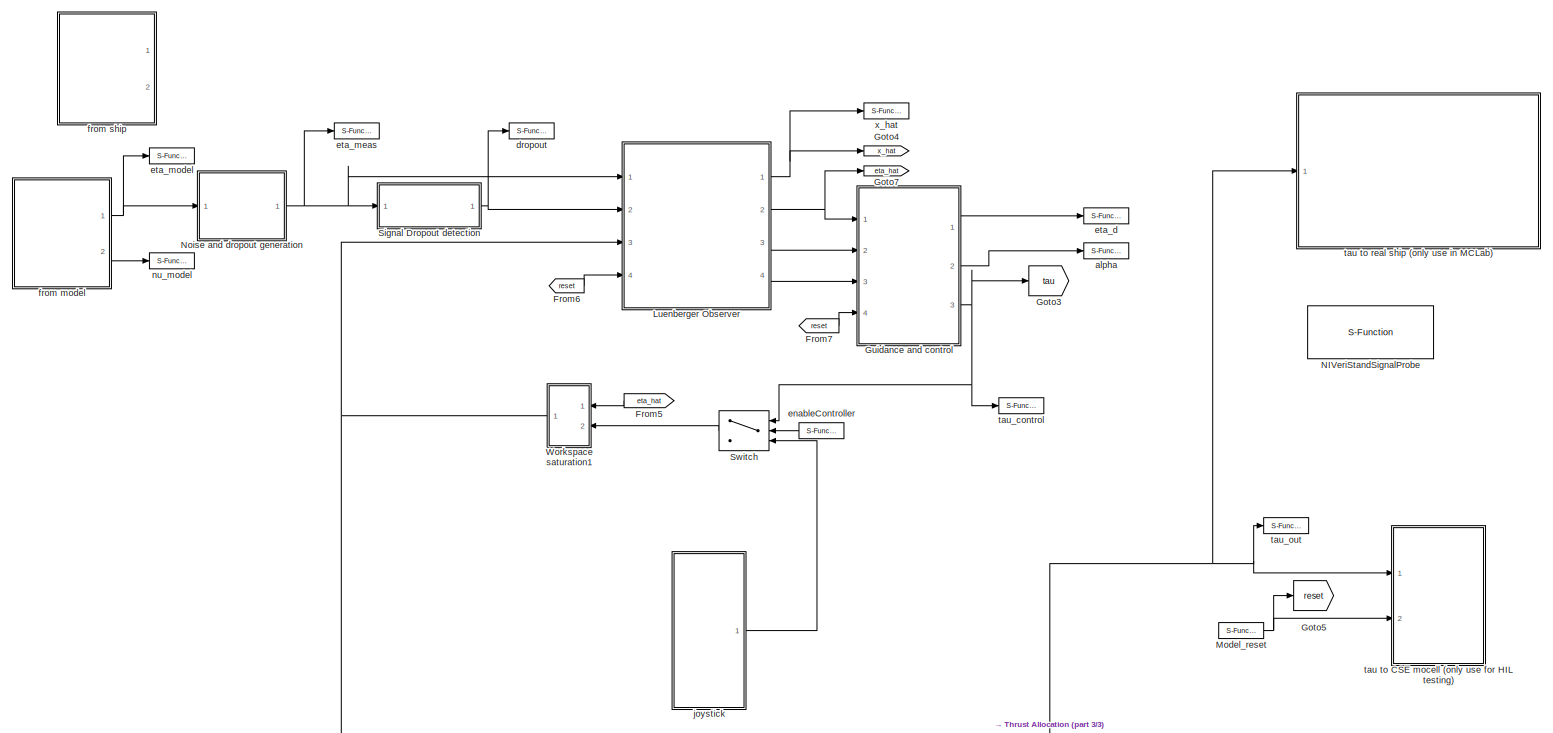
[diagram: root canvas - part 1/3, full width, middle band]
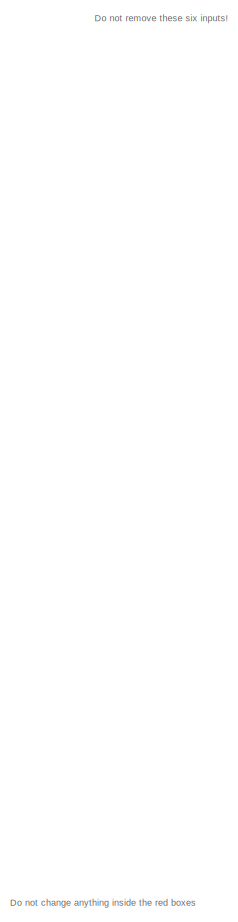
[diagram: root canvas - part 2/3, left side, full height]
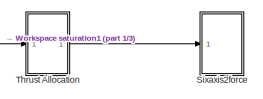
[diagram: root canvas - part 3/3, bottom right region]
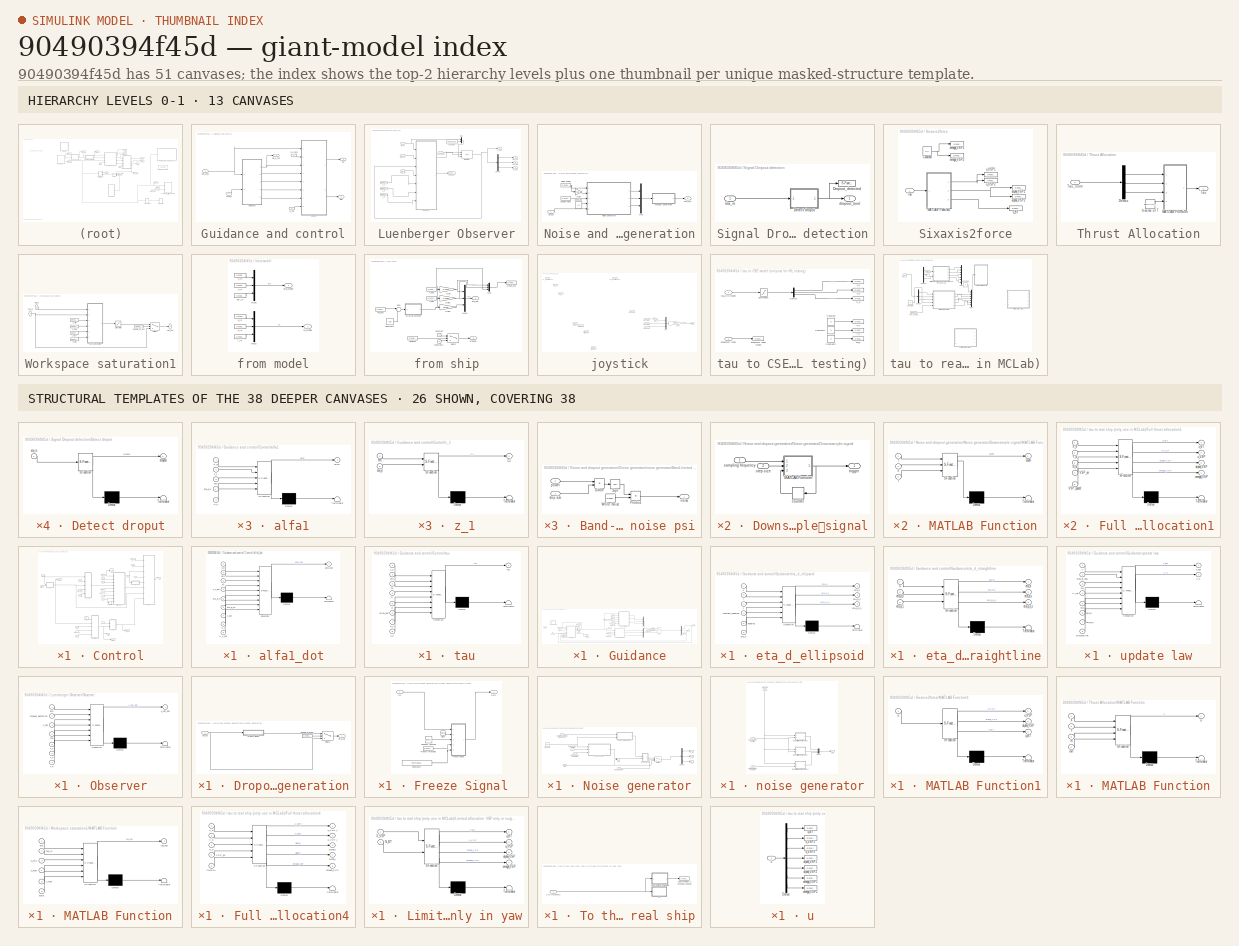
[diagram: thumbnail index - top-2 hierarchy levels (13 canvases) + 26 structural-template representatives of the remaining 38 canvases]
MODEL slx_90490394f45d
KIND model
CONFIG AbsTol = auto
CONFIG FixedStep = 0.01
CONFIG MaxStep = auto
CONFIG MinStep = auto
CONFIG RelTol = 1e-3
CONFIG SampleTimeConstraint = Unconstrained
CONFIG Solver = ode4
CONFIG SolverMode = Auto
CONFIG SolverName = ode4
CONFIG StartTime = 0.0
CONFIG StopTime = inf
BLOCK [From] From5
  GotoTag = eta_hat
BLOCK [From] From6
  GotoTag = reset
BLOCK [From] From7
  GotoTag = reset
BLOCK [Goto] Goto3
  GotoTag = tau
BLOCK [Goto] Goto4
  GotoTag = x_hat
BLOCK [Goto] Goto5
  GotoTag = reset
BLOCK [Goto] Goto7
  GotoTag = eta_hat
BLOCK [SubSystem] Guidance and control
  Ports = [4, 3]
  RequestExecContextInheritance = off
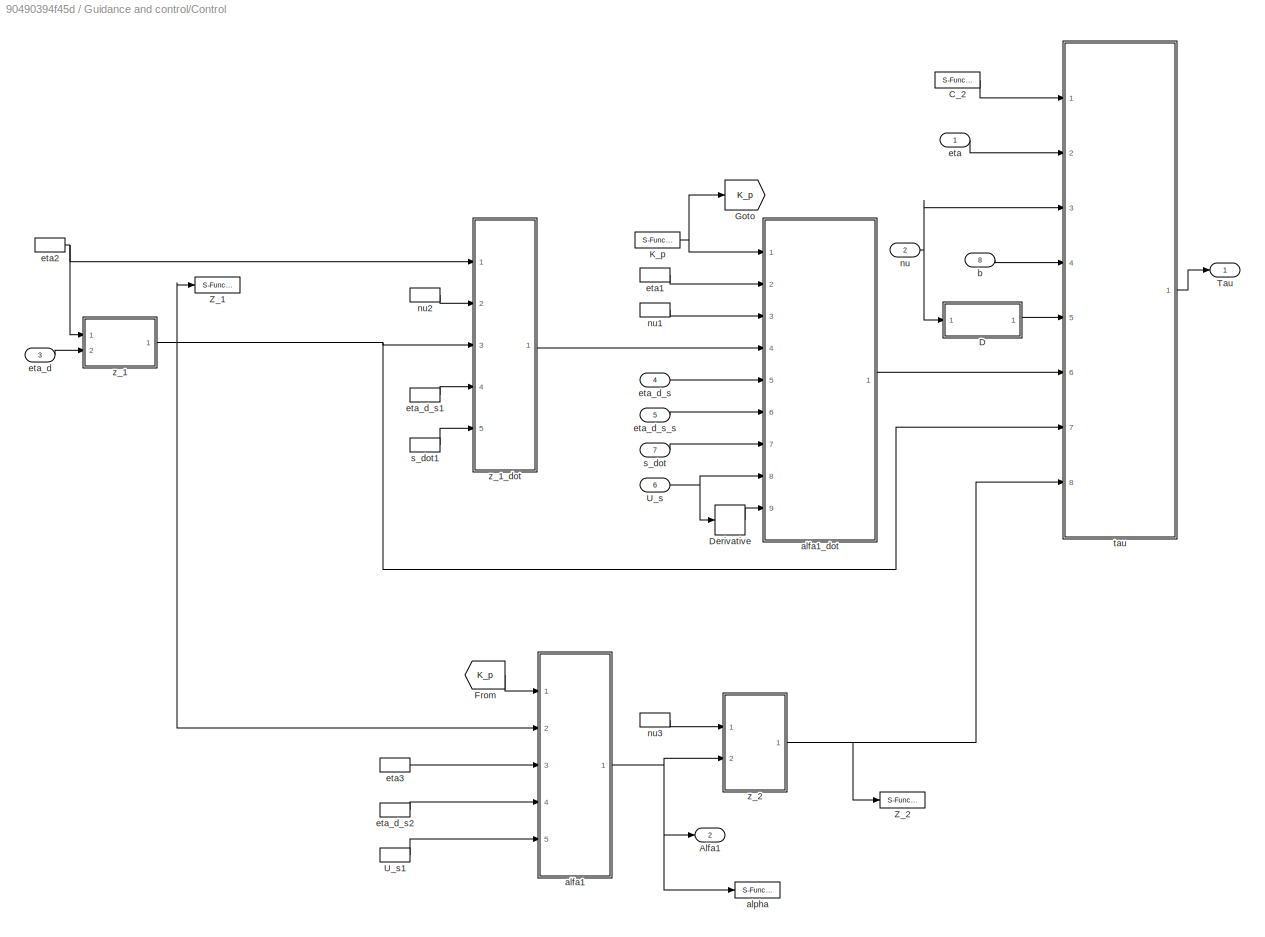
BLOCK [SubSystem] Guidance and control/Control
  Ports = [8, 2]
  RequestExecContextInheritance = off
BLOCK [Outport] Guidance and control/Control/Alfa1
  IconDisplay = Port number
  Port = 2
BLOCK [S-Function] Guidance and control/Control/C_2
  CopyFcn = NIVeriStand_MDL_functions('', 'IO_copy');
  DeleteFcn = NIVeriStand_MDL_functions('', 'IO_delete');
  FunctionName = NIVeriStandIO
  MoveFcn = set_param(gcb, 'Mask', 'on');
  Parameters = width dtype portnum stime stype btype
  Ports = [0, 1]
  Priority = 2
BLOCK [SubSystem] Guidance and control/Control/D
  ErrorFcn = Stateflow.Translate.translate
  PermitHierarchicalResolution = ExplicitOnly
  Ports = [1, 1]
  RequestExecContextInheritance = off
  SFBlockType = MATLAB Function
  TreatAsAtomicUnit = on
BLOCK [Demux] Guidance and control/Control/D/ Demux 
  Outputs = 1
  Ports = [1, 1]
BLOCK [S-Function] Guidance and control/Control/D/ SFunction 
  EnableBusSupport = on
  FunctionName = sf_sfun
  PortCounts = [1 2]
  Ports = [1, 2]
  Tag = Stateflow S-Function ctrl_student_HIL 22
BLOCK [Terminator] Guidance and control/Control/D/ Terminator 
BLOCK [Outport] Guidance and control/Control/D/D
  IconDisplay = Port number
BLOCK [Inport] Guidance and control/Control/D/nu
  IconDisplay = Port number
BLOCK [Derivative] Guidance and control/Control/Derivative
BLOCK [From] Guidance and control/Control/From
  GotoTag = K_p
BLOCK [Goto] Guidance and control/Control/Goto
  GotoTag = K_p
BLOCK [S-Function] Guidance and control/Control/K_p
  CopyFcn = NIVeriStand_MDL_functions('', 'IO_copy');
  DeleteFcn = NIVeriStand_MDL_functions('', 'IO_delete');
  FunctionName = NIVeriStandIO
  MoveFcn = set_param(gcb, 'Mask', 'on');
  Parameters = width dtype portnum stime stype btype
  Ports = [0, 1]
  Priority = 1
BLOCK [Outport] Guidance and control/Control/Tau
  IconDisplay = Port number
BLOCK [Inport] Guidance and control/Control/U_s
  IconDisplay = Port number
  Port = 6
BLOCK [InportShadow] Guidance and control/Control/U_s1
  IconDisplay = Port number
  Port = 6
BLOCK [S-Function] Guidance and control/Control/Z_1
  CopyFcn = NIVeriStand_MDL_functions('', 'IO_copy');
  DeleteFcn = NIVeriStand_MDL_functions('', 'IO_delete');
  FunctionName = NIVeriStandIO
  MoveFcn = set_param(gcb, 'Mask', 'on');
  Parameters = width dtype portnum stime stype btype
  Ports = [1]
  Priority = 2
BLOCK [S-Function] Guidance and control/Control/Z_2
  CopyFcn = NIVeriStand_MDL_functions('', 'IO_copy');
  DeleteFcn = NIVeriStand_MDL_functions('', 'IO_delete');
  FunctionName = NIVeriStandIO
  MoveFcn = set_param(gcb, 'Mask', 'on');
  Parameters = width dtype portnum stime stype btype
  Ports = [1]
  Priority = 3
BLOCK [SubSystem] Guidance and control/Control/alfa1
  ErrorFcn = Stateflow.Translate.translate
  PermitHierarchicalResolution = ExplicitOnly
  Ports = [5, 1]
  RequestExecContextInheritance = off
  SFBlockType = MATLAB Function
  TreatAsAtomicUnit = on
BLOCK [Demux] Guidance and control/Control/alfa1/ Demux 
  Outputs = 1
  Ports = [1, 1]
BLOCK [S-Function] Guidance and control/Control/alfa1/ SFunction 
  EnableBusSupport = on
  FunctionName = sf_sfun
  PortCounts = [5 2]
  Ports = [5, 2]
  Tag = Stateflow S-Function ctrl_student_HIL 19
BLOCK [Terminator] Guidance and control/Control/alfa1/ Terminator 
BLOCK [Inport] Guidance and control/Control/alfa1/K_p
  IconDisplay = Port number
BLOCK [Inport] Guidance and control/Control/alfa1/U_s
  IconDisplay = Port number
  Port = 5
BLOCK [Outport] Guidance and control/Control/alfa1/alfa1
  IconDisplay = Port number
BLOCK [Inport] Guidance and control/Control/alfa1/eta
  IconDisplay = Port number
  Port = 3
BLOCK [Inport] Guidance and control/Control/alfa1/eta_d_s
  IconDisplay = Port number
  Port = 4
BLOCK [Inport] Guidance and control/Control/alfa1/z_1
  IconDisplay = Port number
  Port = 2
BLOCK [SubSystem] Guidance and control/Control/alfa1_dot
  ErrorFcn = Stateflow.Translate.translate
  PermitHierarchicalResolution = ExplicitOnly
  Ports = [9, 1]
  RequestExecContextInheritance = off
  SFBlockType = MATLAB Function
  TreatAsAtomicUnit = on
BLOCK [Demux] Guidance and control/Control/alfa1_dot/ Demux 
  Outputs = 1
  Ports = [1, 1]
BLOCK [S-Function] Guidance and control/Control/alfa1_dot/ SFunction 
  EnableBusSupport = on
  FunctionName = sf_sfun
  PortCounts = [9 2]
  Ports = [9, 2]
  Tag = Stateflow S-Function ctrl_student_HIL 20
BLOCK [Terminator] Guidance and control/Control/alfa1_dot/ Terminator 
BLOCK [Inport] Guidance and control/Control/alfa1_dot/K_p
  IconDisplay = Port number
BLOCK [Inport] Guidance and control/Control/alfa1_dot/U_s
  IconDisplay = Port number
  Port = 8
BLOCK [Inport] Guidance and control/Control/alfa1_dot/U_s_dot
  IconDisplay = Port number
  Port = 9
BLOCK [Outport] Guidance and control/Control/alfa1_dot/alfa1_dot
  IconDisplay = Port number
BLOCK [Inport] Guidance and control/Control/alfa1_dot/eta
  IconDisplay = Port number
  Port = 2
BLOCK [Inport] Guidance and control/Control/alfa1_dot/eta_d_s
  IconDisplay = Port number
  Port = 5
BLOCK [Inport] Guidance and control/Control/alfa1_dot/eta_d_s2
  IconDisplay = Port number
  Port = 6
BLOCK [Inport] Guidance and control/Control/alfa1_dot/nu
  IconDisplay = Port number
  Port = 3
BLOCK [Inport] Guidance and control/Control/alfa1_dot/s_dot
  IconDisplay = Port number
  Port = 7
BLOCK [Inport] Guidance and control/Control/alfa1_dot/z_1_dot
  IconDisplay = Port number
  Port = 4
BLOCK [S-Function] Guidance and control/Control/alpha
  CopyFcn = NIVeriStand_MDL_functions('', 'IO_copy');
  DeleteFcn = NIVeriStand_MDL_functions('', 'IO_delete');
  FunctionName = NIVeriStandIO
  MoveFcn = set_param(gcb, 'Mask', 'on');
  Parameters = width dtype portnum stime stype btype
  Ports = [1]
  Priority = 1
BLOCK [Inport] Guidance and control/Control/b
  IconDisplay = Port number
  Port = 8
BLOCK [Inport] Guidance and control/Control/eta
  IconDisplay = Port number
BLOCK [InportShadow] Guidance and control/Control/eta1
  IconDisplay = Port number
BLOCK [InportShadow] Guidance and control/Control/eta2
  IconDisplay = Port number
BLOCK [InportShadow] Guidance and control/Control/eta3
  IconDisplay = Port number
BLOCK [Inport] Guidance and control/Control/eta_d
  IconDisplay = Port number
  Port = 3
BLOCK [Inport] Guidance and control/Control/eta_d_s
  IconDisplay = Port number
  Port = 4
BLOCK [InportShadow] Guidance and control/Control/eta_d_s1
  IconDisplay = Port number
  Port = 4
BLOCK [InportShadow] Guidance and control/Control/eta_d_s2
  IconDisplay = Port number
  Port = 4
BLOCK [Inport] Guidance and control/Control/eta_d_s_s 
  IconDisplay = Port number
  Port = 5
BLOCK [Inport] Guidance and control/Control/nu
  IconDisplay = Port number
  Port = 2
BLOCK [InportShadow] Guidance and control/Control/nu1
  IconDisplay = Port number
  Port = 2
BLOCK [InportShadow] Guidance and control/Control/nu2
  IconDisplay = Port number
  Port = 2
BLOCK [InportShadow] Guidance and control/Control/nu3
  IconDisplay = Port number
  Port = 2
BLOCK [Inport] Guidance and control/Control/s_dot
  IconDisplay = Port number
  Port = 7
BLOCK [InportShadow] Guidance and control/Control/s_dot1
  IconDisplay = Port number
  Port = 7
BLOCK [SubSystem] Guidance and control/Control/tau
  ErrorFcn = Stateflow.Translate.translate
  PermitHierarchicalResolution = ExplicitOnly
  Ports = [8, 1]
  RequestExecContextInheritance = off
  SFBlockType = MATLAB Function
  TreatAsAtomicUnit = on
BLOCK [Demux] Guidance and control/Control/tau/ Demux 
  Outputs = 1
  Ports = [1, 1]
BLOCK [S-Function] Guidance and control/Control/tau/ SFunction 
  EnableBusSupport = on
  FunctionName = sf_sfun
  PortCounts = [8 2]
  Ports = [8, 2]
  Tag = Stateflow S-Function ctrl_student_HIL 21
BLOCK [Terminator] Guidance and control/Control/tau/ Terminator 
BLOCK [Inport] Guidance and control/Control/tau/D
  IconDisplay = Port number
  Port = 5
BLOCK [Inport] Guidance and control/Control/tau/alfa1_dot
  IconDisplay = Port number
  Port = 6
BLOCK [Inport] Guidance and control/Control/tau/b
  IconDisplay = Port number
  Port = 4
BLOCK [Inport] Guidance and control/Control/tau/c_2
  IconDisplay = Port number
BLOCK [Inport] Guidance and control/Control/tau/eta
  IconDisplay = Port number
  Port = 2
BLOCK [Inport] Guidance and control/Control/tau/nu
  IconDisplay = Port number
  Port = 3
BLOCK [Outport] Guidance and control/Control/tau/tau
  IconDisplay = Port number
BLOCK [Inport] Guidance and control/Control/tau/z_1
  IconDisplay = Port number
  Port = 7
BLOCK [Inport] Guidance and control/Control/tau/z_2
  IconDisplay = Port number
  Port = 8
BLOCK [SubSystem] Guidance and control/Control/z_1
  ErrorFcn = Stateflow.Translate.translate
  PermitHierarchicalResolution = ExplicitOnly
  Ports = [2, 1]
  RequestExecContextInheritance = off
  SFBlockType = MATLAB Function
  TreatAsAtomicUnit = on
BLOCK [Demux] Guidance and control/Control/z_1/ Demux 
  Outputs = 1
  Ports = [1, 1]
BLOCK [S-Function] Guidance and control/Control/z_1/ SFunction 
  EnableBusSupport = on
  FunctionName = sf_sfun
  PortCounts = [2 2]
  Ports = [2, 2]
  Tag = Stateflow S-Function ctrl_student_HIL 2
BLOCK [Terminator] Guidance and control/Control/z_1/ Terminator 
BLOCK [Inport] Guidance and control/Control/z_1/eta
  IconDisplay = Port number
BLOCK [Inport] Guidance and control/Control/z_1/eta_d
  IconDisplay = Port number
  Port = 2
BLOCK [Outport] Guidance and control/Control/z_1/z_1
  IconDisplay = Port number
BLOCK [SubSystem] Guidance and control/Control/z_1_dot
  ErrorFcn = Stateflow.Translate.translate
  PermitHierarchicalResolution = ExplicitOnly
  Ports = [5, 1]
  RequestExecContextInheritance = off
  SFBlockType = MATLAB Function
  TreatAsAtomicUnit = on
BLOCK [Demux] Guidance and control/Control/z_1_dot/ Demux 
  Outputs = 1
  Ports = [1, 1]
BLOCK [S-Function] Guidance and control/Control/z_1_dot/ SFunction 
  EnableBusSupport = on
  FunctionName = sf_sfun
  PortCounts = [5 2]
  Ports = [5, 2]
  Tag = Stateflow S-Function ctrl_student_HIL 17
BLOCK [Terminator] Guidance and control/Control/z_1_dot/ Terminator 
BLOCK [Inport] Guidance and control/Control/z_1_dot/eta
  IconDisplay = Port number
BLOCK [Inport] Guidance and control/Control/z_1_dot/eta_d_s
  IconDisplay = Port number
  Port = 4
BLOCK [Inport] Guidance and control/Control/z_1_dot/nu
  IconDisplay = Port number
  Port = 2
BLOCK [Inport] Guidance and control/Control/z_1_dot/s_dot
  IconDisplay = Port number
  Port = 5
BLOCK [Inport] Guidance and control/Control/z_1_dot/z_1
  IconDisplay = Port number
  Port = 3
BLOCK [Outport] Guidance and control/Control/z_1_dot/z_1_dot
  IconDisplay = Port number
BLOCK [SubSystem] Guidance and control/Control/z_2
  ErrorFcn = Stateflow.Translate.translate
  PermitHierarchicalResolution = ExplicitOnly
  Ports = [2, 1]
  RequestExecContextInheritance = off
  SFBlockType = MATLAB Function
  TreatAsAtomicUnit = on
BLOCK [Demux] Guidance and control/Control/z_2/ Demux 
  Outputs = 1
  Ports = [1, 1]
BLOCK [S-Function] Guidance and control/Control/z_2/ SFunction 
  EnableBusSupport = on
  FunctionName = sf_sfun
  PortCounts = [2 2]
  Ports = [2, 2]
  Tag = Stateflow S-Function ctrl_student_HIL 18
BLOCK [Terminator] Guidance and control/Control/z_2/ Terminator 
BLOCK [Inport] Guidance and control/Control/z_2/alfa1
  IconDisplay = Port number
  Port = 2
BLOCK [Inport] Guidance and control/Control/z_2/nu
  IconDisplay = Port number
BLOCK [Outport] Guidance and control/Control/z_2/z_2
  IconDisplay = Port number
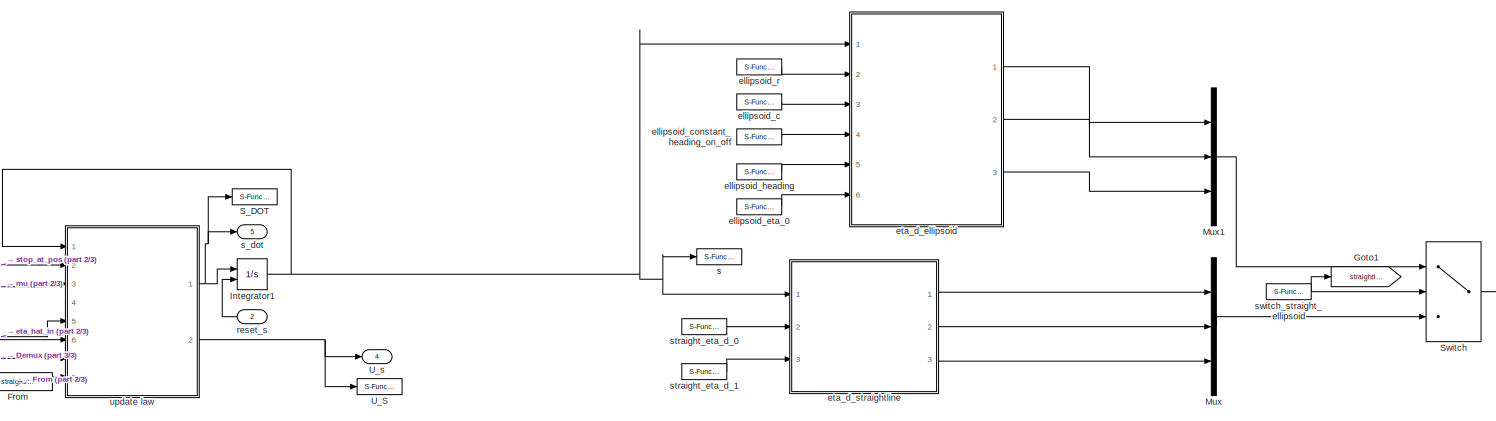
[diagram: Guidance and control/Guidance - part 1/3, center side, full height]
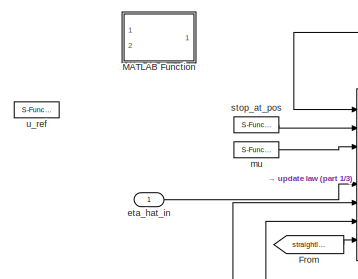
[diagram: Guidance and control/Guidance - part 2/3, middle left region]
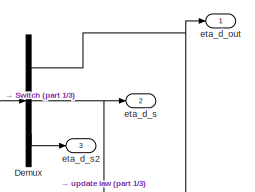
[diagram: Guidance and control/Guidance - part 3/3, middle right region]
BLOCK [SubSystem] Guidance and control/Guidance
  Ports = [2, 5]
  RequestExecContextInheritance = off
BLOCK [Demux] Guidance and control/Guidance/Demux
  DisplayOption = bar
  Outputs = 3
  Ports = [1, 3]
BLOCK [From] Guidance and control/Guidance/From
  GotoTag = straightline
BLOCK [Goto] Guidance and control/Guidance/Goto1
  GotoTag = straightline
BLOCK [Integrator] Guidance and control/Guidance/Integrator1
  ExternalReset = rising
  Ports = [2, 1]
BLOCK [SubSystem] Guidance and control/Guidance/MATLAB Function
  ErrorFcn = Stateflow.Translate.translate
  PermitHierarchicalResolution = ExplicitOnly
  Ports = [2, 1]
  RequestExecContextInheritance = off
  SFBlockType = MATLAB Function
  TreatAsAtomicUnit = on
BLOCK [Demux] Guidance and control/Guidance/MATLAB Function/ Demux 
  Outputs = 1
  Ports = [1, 1]
BLOCK [S-Function] Guidance and control/Guidance/MATLAB Function/ SFunction 
  FunctionName = sf_sfun
  PortCounts = [2 2]
  Ports = [2, 2]
  Tag = Stateflow S-Function ctrl_student_HIL 25
BLOCK [Terminator] Guidance and control/Guidance/MATLAB Function/ Terminator 
BLOCK [Inport] Guidance and control/Guidance/MATLAB Function/s
  IconDisplay = Port number
BLOCK [Inport] Guidance and control/Guidance/MATLAB Function/u_ref
  IconDisplay = Port number
  Port = 2
BLOCK [Outport] Guidance and control/Guidance/MATLAB Function/u_ref_out
  IconDisplay = Port number
BLOCK [Mux] Guidance and control/Guidance/Mux
  DisplayOption = bar
  Inputs = 3
  Ports = [3, 1]
BLOCK [Mux] Guidance and control/Guidance/Mux1
  DisplayOption = bar
  Inputs = 3
  Ports = [3, 1]
BLOCK [S-Function] Guidance and control/Guidance/S_DOT
  CopyFcn = NIVeriStand_MDL_functions('', 'IO_copy');
  DeleteFcn = NIVeriStand_MDL_functions('', 'IO_delete');
  FunctionName = NIVeriStandIO
  MoveFcn = set_param(gcb, 'Mask', 'on');
  Parameters = width dtype portnum stime stype btype
  Ports = [1]
  Priority = 3
BLOCK [Switch] Guidance and control/Guidance/Switch
  Criteria = u2 ~= 0
  InputSameDT = off
  SaturateOnIntegerOverflow = off
BLOCK [S-Function] Guidance and control/Guidance/U_S
  CopyFcn = NIVeriStand_MDL_functions('', 'IO_copy');
  DeleteFcn = NIVeriStand_MDL_functions('', 'IO_delete');
  FunctionName = NIVeriStandIO
  MoveFcn = set_param(gcb, 'Mask', 'on');
  Parameters = width dtype portnum stime stype btype
  Ports = [1]
  Priority = 2
BLOCK [Outport] Guidance and control/Guidance/U_s
  IconDisplay = Port number
  Port = 4
BLOCK [S-Function] Guidance and control/Guidance/ellipsoid_c
  CopyFcn = NIVeriStand_MDL_functions('', 'IO_copy');
  DeleteFcn = NIVeriStand_MDL_functions('', 'IO_delete');
  FunctionName = NIVeriStandIO
  MoveFcn = set_param(gcb, 'Mask', 'on');
  Parameters = width dtype portnum stime stype btype
  Ports = [0, 1]
  Priority = 4
BLOCK [S-Function] Guidance and control/Guidance/ellipsoid_constant_heading_on_off
  CopyFcn = NIVeriStand_MDL_functions('', 'IO_copy');
  DeleteFcn = NIVeriStand_MDL_functions('', 'IO_delete');
  FunctionName = NIVeriStandIO
  MoveFcn = set_param(gcb, 'Mask', 'on');
  Parameters = width dtype portnum stime stype btype
  Ports = [0, 1]
  Priority = 5
BLOCK [S-Function] Guidance and control/Guidance/ellipsoid_eta_0
  CopyFcn = NIVeriStand_MDL_functions('', 'IO_copy');
  DeleteFcn = NIVeriStand_MDL_functions('', 'IO_delete');
  FunctionName = NIVeriStandIO
  MoveFcn = set_param(gcb, 'Mask', 'on');
  Parameters = width dtype portnum stime stype btype
  Ports = [0, 1]
  Priority = 7
BLOCK [S-Function] Guidance and control/Guidance/ellipsoid_heading
  CopyFcn = NIVeriStand_MDL_functions('', 'IO_copy');
  DeleteFcn = NIVeriStand_MDL_functions('', 'IO_delete');
  FunctionName = NIVeriStandIO
  MoveFcn = set_param(gcb, 'Mask', 'on');
  Parameters = width dtype portnum stime stype btype
  Ports = [0, 1]
  Priority = 6
BLOCK [S-Function] Guidance and control/Guidance/ellipsoid_r
  CopyFcn = NIVeriStand_MDL_functions('', 'IO_copy');
  DeleteFcn = NIVeriStand_MDL_functions('', 'IO_delete');
  FunctionName = NIVeriStandIO
  MoveFcn = set_param(gcb, 'Mask', 'on');
  Parameters = width dtype portnum stime stype btype
  Ports = [0, 1]
  Priority = 3
BLOCK [SubSystem] Guidance and control/Guidance/eta_d_ellipsoid
  ErrorFcn = Stateflow.Translate.translate
  PermitHierarchicalResolution = ExplicitOnly
  Ports = [6, 3]
  RequestExecContextInheritance = off
  SFBlockType = MATLAB Function
  TreatAsAtomicUnit = on
BLOCK [Demux] Guidance and control/Guidance/eta_d_ellipsoid/ Demux 
  Outputs = 1
  Ports = [1, 1]
BLOCK [S-Function] Guidance and control/Guidance/eta_d_ellipsoid/ SFunction 
  EnableBusSupport = on
  FunctionName = sf_sfun
  PortCounts = [6 4]
  Ports = [6, 4]
  Tag = Stateflow S-Function ctrl_student_HIL 7
BLOCK [Terminator] Guidance and control/Guidance/eta_d_ellipsoid/ Terminator 
BLOCK [Inport] Guidance and control/Guidance/eta_d_ellipsoid/c
  IconDisplay = Port number
  Port = 3
BLOCK [Inport] Guidance and control/Guidance/eta_d_ellipsoid/constant_heading
  IconDisplay = Port number
  Port = 4
BLOCK [Inport] Guidance and control/Guidance/eta_d_ellipsoid/eta_0
  IconDisplay = Port number
  Port = 6
BLOCK [Outport] Guidance and control/Guidance/eta_d_ellipsoid/eta_d
  IconDisplay = Port number
BLOCK [Outport] Guidance and control/Guidance/eta_d_ellipsoid/eta_d_s
  IconDisplay = Port number
  Port = 2
BLOCK [Outport] Guidance and control/Guidance/eta_d_ellipsoid/eta_d_s_s
  IconDisplay = Port number
  Port = 3
BLOCK [Inport] Guidance and control/Guidance/eta_d_ellipsoid/heading
  IconDisplay = Port number
  Port = 5
BLOCK [Inport] Guidance and control/Guidance/eta_d_ellipsoid/r
  IconDisplay = Port number
  Port = 2
BLOCK [Inport] Guidance and control/Guidance/eta_d_ellipsoid/s
  IconDisplay = Port number
BLOCK [Outport] Guidance and control/Guidance/eta_d_out
  IconDisplay = Port number
BLOCK [Outport] Guidance and control/Guidance/eta_d_s
  IconDisplay = Port number
  Port = 2
BLOCK [Outport] Guidance and control/Guidance/eta_d_s2
  IconDisplay = Port number
  Port = 3
BLOCK [SubSystem] Guidance and control/Guidance/eta_d_straightline
  ErrorFcn = Stateflow.Translate.translate
  PermitHierarchicalResolution = ExplicitOnly
  Ports = [3, 3]
  RequestExecContextInheritance = off
  SFBlockType = MATLAB Function
  TreatAsAtomicUnit = on
BLOCK [Demux] Guidance and control/Guidance/eta_d_straightline/ Demux 
  Outputs = 1
  Ports = [1, 1]
BLOCK [S-Function] Guidance and control/Guidance/eta_d_straightline/ SFunction 
  EnableBusSupport = on
  FunctionName = sf_sfun
  PortCounts = [3 4]
  Ports = [3, 4]
  Tag = Stateflow S-Function ctrl_student_HIL 5
BLOCK [Terminator] Guidance and control/Guidance/eta_d_straightline/ Terminator 
BLOCK [Outport] Guidance and control/Guidance/eta_d_straightline/eta_d
  IconDisplay = Port number
BLOCK [Inport] Guidance and control/Guidance/eta_d_straightline/eta_d_0
  IconDisplay = Port number
  Port = 2
BLOCK [Inport] Guidance and control/Guidance/eta_d_straightline/eta_d_1
  IconDisplay = Port number
  Port = 3
BLOCK [Outport] Guidance and control/Guidance/eta_d_straightline/eta_d_s
  IconDisplay = Port number
  Port = 2
BLOCK [Outport] Guidance and control/Guidance/eta_d_straightline/eta_d_s_s
  IconDisplay = Port number
  Port = 3
BLOCK [Inport] Guidance and control/Guidance/eta_d_straightline/s
  IconDisplay = Port number
BLOCK [Inport] Guidance and control/Guidance/eta_hat_in 
  IconDisplay = Port number
BLOCK [S-Function] Guidance and control/Guidance/mu
  CopyFcn = NIVeriStand_MDL_functions('', 'IO_copy');
  DeleteFcn = NIVeriStand_MDL_functions('', 'IO_delete');
  FunctionName = NIVeriStandIO
  MoveFcn = set_param(gcb, 'Mask', 'on');
  Parameters = width dtype portnum stime stype btype
  Ports = [0, 1]
  Priority = 1
BLOCK [Inport] Guidance and control/Guidance/reset_s
  IconDisplay = Port number
  Port = 2
BLOCK [S-Function] Guidance and control/Guidance/s
  CopyFcn = NIVeriStand_MDL_functions('', 'IO_copy');
  DeleteFcn = NIVeriStand_MDL_functions('', 'IO_delete');
  FunctionName = NIVeriStandIO
  MoveFcn = set_param(gcb, 'Mask', 'on');
  Parameters = width dtype portnum stime stype btype
  Ports = [1]
  Priority = 1
BLOCK [Outport] Guidance and control/Guidance/s_dot
  IconDisplay = Port number
  Port = 5
BLOCK [S-Function] Guidance and control/Guidance/stop_at_pos
  CopyFcn = NIVeriStand_MDL_functions('', 'IO_copy');
  DeleteFcn = NIVeriStand_MDL_functions('', 'IO_delete');
  FunctionName = NIVeriStandIO
  MoveFcn = set_param(gcb, 'Mask', 'on');
  Parameters = width dtype portnum stime stype btype
  Ports = [0, 1]
  Priority = 11
BLOCK [S-Function] Guidance and control/Guidance/straight_eta_d_0
  CopyFcn = NIVeriStand_MDL_functions('', 'IO_copy');
  DeleteFcn = NIVeriStand_MDL_functions('', 'IO_delete');
  FunctionName = NIVeriStandIO
  MoveFcn = set_param(gcb, 'Mask', 'on');
  Parameters = width dtype portnum stime stype btype
  Ports = [0, 1]
  Priority = 8
BLOCK [S-Function] Guidance and control/Guidance/straight_eta_d_1
  CopyFcn = NIVeriStand_MDL_functions('', 'IO_copy');
  DeleteFcn = NIVeriStand_MDL_functions('', 'IO_delete');
  FunctionName = NIVeriStandIO
  MoveFcn = set_param(gcb, 'Mask', 'on');
  Parameters = width dtype portnum stime stype btype
  Ports = [0, 1]
  Priority = 9
BLOCK [S-Function] Guidance and control/Guidance/switch_straight_ellipsoid
  CopyFcn = NIVeriStand_MDL_functions('', 'IO_copy');
  DeleteFcn = NIVeriStand_MDL_functions('', 'IO_delete');
  FunctionName = NIVeriStandIO
  MoveFcn = set_param(gcb, 'Mask', 'on');
  Parameters = width dtype portnum stime stype btype
  Ports = [0, 1]
  Priority = 10
BLOCK [S-Function] Guidance and control/Guidance/u_ref
  CopyFcn = NIVeriStand_MDL_functions('', 'IO_copy');
  DeleteFcn = NIVeriStand_MDL_functions('', 'IO_delete');
  FunctionName = NIVeriStandIO
  MoveFcn = set_param(gcb, 'Mask', 'on');
  Parameters = width dtype portnum stime stype btype
  Ports = [0, 1]
  Priority = 2
BLOCK [SubSystem] Guidance and control/Guidance/update law
  ErrorFcn = Stateflow.Translate.translate
  PermitHierarchicalResolution = ExplicitOnly
  Ports = [8, 2]
  RequestExecContextInheritance = off
  SFBlockType = MATLAB Function
  TreatAsAtomicUnit = on
BLOCK [Demux] Guidance and control/Guidance/update law/ Demux 
  Outputs = 1
  Ports = [1, 1]
BLOCK [S-Function] Guidance and control/Guidance/update law/ SFunction 
  EnableBusSupport = on
  FunctionName = sf_sfun
  PortCounts = [8 3]
  Ports = [8, 3]
  Tag = Stateflow S-Function ctrl_student_HIL 6
BLOCK [Terminator] Guidance and control/Guidance/update law/ Terminator 
BLOCK [Inport] Guidance and control/Guidance/update law/U_ref
  IconDisplay = Port number
  Port = 4
BLOCK [Outport] Guidance and control/Guidance/update law/U_s
  IconDisplay = Port number
  Port = 2
BLOCK [Inport] Guidance and control/Guidance/update law/eta
  IconDisplay = Port number
  Port = 5
BLOCK [Inport] Guidance and control/Guidance/update law/eta_d
  IconDisplay = Port number
  Port = 6
BLOCK [Inport] Guidance and control/Guidance/update law/eta_d_s
  IconDisplay = Port number
  Port = 7
BLOCK [Inport] Guidance and control/Guidance/update law/mu
  IconDisplay = Port number
  Port = 3
BLOCK [Inport] Guidance and control/Guidance/update law/s
  IconDisplay = Port number
BLOCK [Outport] Guidance and control/Guidance/update law/s_dot
  IconDisplay = Port number
BLOCK [Inport] Guidance and control/Guidance/update law/stop_at_pos
  IconDisplay = Port number
  Port = 2
BLOCK [Inport] Guidance and control/Guidance/update law/straightline
  IconDisplay = Port number
  Port = 8
BLOCK [Outport] Guidance and control/alfa1
  IconDisplay = Port number
  Port = 2
BLOCK [Inport] Guidance and control/b_hat
  IconDisplay = Port number
  Port = 3
BLOCK [Outport] Guidance and control/eta_d_out
  IconDisplay = Port number
BLOCK [Inport] Guidance and control/eta_hat_in 
  IconDisplay = Port number
BLOCK [Inport] Guidance and control/nu_hat_in
  IconDisplay = Port number
  Port = 2
BLOCK [Inport] Guidance and control/reset_s
  IconDisplay = Port number
  Port = 4
BLOCK [Outport] Guidance and control/tau
  IconDisplay = Port number
  Port = 3
BLOCK [SubSystem] Luenberger Observer
  Ports = [4, 4]
  RequestExecContextInheritance = off
BLOCK [Constant] Luenberger Observer/Constant
  Value = zeros(6,1)
BLOCK [Demux] Luenberger Observer/Demux
  DisplayOption = bar
  Outputs = 3
  Ports = [1, 3]
BLOCK [Outport] Luenberger Observer/Eta_hat
  IconDisplay = Port number
  Port = 2
  PortDimensions = [3, 1]
BLOCK [Inport] Luenberger Observer/Eta_in
  IconDisplay = Port number
BLOCK [Integrator] Luenberger Observer/Integrator
  ExternalReset = rising
  InitialCondition = Par.Observer.x_0
  InitialConditionSource = external
  Ports = [3, 1]
BLOCK [S-Function] Luenberger Observer/L_1
  CopyFcn = NIVeriStand_MDL_functions('', 'IO_copy');
  DeleteFcn = NIVeriStand_MDL_functions('', 'IO_delete');
  FunctionName = NIVeriStandIO
  MoveFcn = set_param(gcb, 'Mask', 'on');
  Parameters = width dtype portnum stime stype btype
  Ports = [0, 1]
  Priority = 1
BLOCK [S-Function] Luenberger Observer/L_2
  CopyFcn = NIVeriStand_MDL_functions('', 'IO_copy');
  DeleteFcn = NIVeriStand_MDL_functions('', 'IO_delete');
  FunctionName = NIVeriStandIO
  MoveFcn = set_param(gcb, 'Mask', 'on');
  Parameters = width dtype portnum stime stype btype
  Ports = [0, 1]
  Priority = 2
BLOCK [S-Function] Luenberger Observer/L_3
  CopyFcn = NIVeriStand_MDL_functions('', 'IO_copy');
  DeleteFcn = NIVeriStand_MDL_functions('', 'IO_delete');
  FunctionName = NIVeriStandIO
  MoveFcn = set_param(gcb, 'Mask', 'on');
  Parameters = width dtype portnum stime stype btype
  Ports = [0, 1]
  Priority = 3
BLOCK [Mux] Luenberger Observer/Mux
  DisplayOption = bar
  Inputs = 2
  Ports = [2, 1]
BLOCK [Outport] Luenberger Observer/Nu_hat
  IconDisplay = Port number
  Port = 3
  PortDimensions = [3, 1]
BLOCK [SubSystem] Luenberger Observer/Observer
  ErrorFcn = Stateflow.Translate.translate
  PermitHierarchicalResolution = ExplicitOnly
  Ports = [7, 1]
  RequestExecContextInheritance = off
  SFBlockType = MATLAB Function
  TreatAsAtomicUnit = on
BLOCK [Demux] Luenberger Observer/Observer/ Demux 
  Outputs = 1
  Ports = [1, 1]
BLOCK [S-Function] Luenberger Observer/Observer/ SFunction 
  EnableBusSupport = on
  FunctionName = sf_sfun
  PortCounts = [7 2]
  Ports = [7, 2]
  Tag = Stateflow S-Function ctrl_student_HIL 16
BLOCK [Terminator] Luenberger Observer/Observer/ Terminator 
BLOCK [Inport] Luenberger Observer/Observer/L_1
  IconDisplay = Port number
  Port = 5
BLOCK [Inport] Luenberger Observer/Observer/L_2
  IconDisplay = Port number
  Port = 6
BLOCK [Inport] Luenberger Observer/Observer/L_3
  IconDisplay = Port number
  Port = 7
BLOCK [Inport] Luenberger Observer/Observer/dropout_detection
  IconDisplay = Port number
  Port = 2
BLOCK [Inport] Luenberger Observer/Observer/eta
  IconDisplay = Port number
BLOCK [Inport] Luenberger Observer/Observer/tau
  IconDisplay = Port number
  Port = 4
BLOCK [Inport] Luenberger Observer/Observer/x_hat
  IconDisplay = Port number
  Port = 3
BLOCK [Outport] Luenberger Observer/Observer/x_hat_dot
  IconDisplay = Port number
BLOCK [Inport] Luenberger Observer/Tau_in
  IconDisplay = Port number
  Port = 3
BLOCK [Outport] Luenberger Observer/b_hat
  IconDisplay = Port number
  Port = 4
  PortDimensions = [3, 1]
BLOCK [Inport] Luenberger Observer/dropout
  IconDisplay = Port number
  Port = 2
BLOCK [S-Function] Luenberger Observer/obs out
  CopyFcn = NIVeriStand_MDL_functions('', 'IO_copy');
  DeleteFcn = NIVeriStand_MDL_functions('', 'IO_delete');
  FunctionName = NIVeriStandIO
  MoveFcn = set_param(gcb, 'Mask', 'on');
  Parameters = width dtype portnum stime stype btype
  Ports = [1]
  Priority = 1
BLOCK [Inport] Luenberger Observer/reset_model
  IconDisplay = Port number
  Port = 4
BLOCK [Outport] Luenberger Observer/x_hat 
  IconDisplay = Port number
BLOCK [S-Function] Model_reset
  CopyFcn = NIVeriStand_MDL_functions('', 'IO_copy');
  DeleteFcn = NIVeriStand_MDL_functions('', 'IO_delete');
  FunctionName = NIVeriStandIO
  MoveFcn = set_param(gcb, 'Mask', 'on');
  Parameters = width dtype portnum stime stype btype
  Ports = [0, 1]
  Priority = 3
BLOCK [S-Function] NIVeriStandSignalProbe
  FunctionName = NIVeriStandSignalProbe
  Parameters = 1
  Ports = []
BLOCK [SubSystem] Noise and dropout generation
  Ports = [1, 1]
  RequestExecContextInheritance = off
BLOCK [Constant] Noise and dropout generation/Constant
  Value = 10
BLOCK [SubSystem] Noise and dropout generation/Dropout generation
  Ports = [1, 1]
  RequestExecContextInheritance = off
BLOCK [S-Function] Noise and dropout generation/Dropout generation/Enable dropout
  CopyFcn = NIVeriStand_MDL_functions('', 'IO_copy');
  DeleteFcn = NIVeriStand_MDL_functions('', 'IO_delete');
  FunctionName = NIVeriStandIO
  MoveFcn = set_param(gcb, 'Mask', 'on');
  Parameters = width dtype portnum stime stype btype
  Ports = [0, 1]
  Priority = 1
BLOCK [Inport] Noise and dropout generation/Dropout generation/Eta_in
  IconDisplay = Port number
BLOCK [Outport] Noise and dropout generation/Dropout generation/Eta_out
  IconDisplay = Port number
BLOCK [SubSystem] Noise and dropout generation/Dropout generation/Freeze Signal 
  Ports = [1, 1]
  RequestExecContextInheritance = off
BLOCK [Clock] Noise and dropout generation/Dropout generation/Freeze Signal /Clock
BLOCK [Constant] Noise and dropout generation/Dropout generation/Freeze Signal /Constant1
  Value = Par.Freeze.length
BLOCK [SubSystem] Noise and dropout generation/Dropout generation/Freeze Signal /Freeze signal
  ErrorFcn = Stateflow.Translate.translate
  PermitHierarchicalResolution = ExplicitOnly
  Ports = [5, 1]
  RequestExecContextInheritance = off
  SFBlockType = MATLAB Function
  TreatAsAtomicUnit = on
BLOCK [Demux] Noise and dropout generation/Dropout generation/Freeze Signal /Freeze signal/ Demux 
  Outputs = 1
  Ports = [1, 1]
BLOCK [S-Function] Noise and dropout generation/Dropout generation/Freeze Signal /Freeze signal/ SFunction 
  EnableBusSupport = on
  FunctionName = sf_sfun
  PortCounts = [5 2]
  Ports = [5, 2]
  Tag = Stateflow S-Function ctrl_student_HIL 3
BLOCK [Terminator] Noise and dropout generation/Dropout generation/Freeze Signal /Freeze signal/ Terminator 
BLOCK [Inport] Noise and dropout generation/Dropout generation/Freeze Signal /Freeze signal/eta_in
  IconDisplay = Port number
BLOCK [Outport] Noise and dropout generation/Dropout generation/Freeze Signal /Freeze signal/eta_out
  IconDisplay = Port number
BLOCK [Inport] Noise and dropout generation/Dropout generation/Freeze Signal /Freeze signal/length
  IconDisplay = Port number
  Port = 5
BLOCK [Inport] Noise and dropout generation/Dropout generation/Freeze Signal /Freeze signal/random_value
  IconDisplay = Port number
  Port = 3
BLOCK [Inport] Noise and dropout generation/Dropout generation/Freeze Signal /Freeze signal/threshold
  IconDisplay = Port number
  Port = 4
BLOCK [Inport] Noise and dropout generation/Dropout generation/Freeze Signal /Freeze signal/time
  IconDisplay = Port number
  Port = 2
BLOCK [S-Function] Noise and dropout generation/Dropout generation/Freeze Signal /Freeze threshold
  CopyFcn = NIVeriStand_MDL_functions('', 'IO_copy');
  DeleteFcn = NIVeriStand_MDL_functions('', 'IO_delete');
  FunctionName = NIVeriStandIO
  MoveFcn = set_param(gcb, 'Mask', 'on');
  Parameters = width dtype portnum stime stype btype
  Ports = [0, 1]
  Priority = 1
BLOCK [Inport] Noise and dropout generation/Dropout generation/Freeze Signal /In1
  IconDisplay = Port number
BLOCK [Outport] Noise and dropout generation/Dropout generation/Freeze Signal /Out1
  IconDisplay = Port number
BLOCK [RandomNumber] Noise and dropout generation/Dropout generation/Freeze Signal /Random Number
  SampleTime = Par.Sample_time
  Seed = ceil(abs(5*round(abs(now*1e6 - fix(now*1e6))*1e5)))
BLOCK [Switch] Noise and dropout generation/Dropout generation/Switch
  Criteria = u2 > Threshold
  InputSameDT = off
  SaturateOnIntegerOverflow = off
BLOCK [S-Function] Noise and dropout generation/Enable noise
  CopyFcn = NIVeriStand_MDL_functions('', 'IO_copy');
  DeleteFcn = NIVeriStand_MDL_functions('', 'IO_delete');
  FunctionName = NIVeriStandIO
  MoveFcn = set_param(gcb, 'Mask', 'on');
  Parameters = width dtype portnum stime stype btype
  Ports = [0, 1]
  Priority = 1
BLOCK [Inport] Noise and dropout generation/Eta_in
  IconDisplay = Port number
BLOCK [Outport] Noise and dropout generation/Eta_out
  IconDisplay = Port number
BLOCK [Gain] Noise and dropout generation/Gain
  Gain = 1/10
  OutDataTypeStr = Inherit: Inherit via internal rule
  ParamDataTypeStr = Inherit: Inherit via internal rule
  SaturateOnIntegerOverflow = off
BLOCK [Mux] Noise and dropout generation/Mux
  DisplayOption = bar
  Inputs = 3
  Ports = [3, 1]
BLOCK [SubSystem] Noise and dropout generation/Noise generator
  Ports = [5, 3]
  RequestExecContextInheritance = off
BLOCK [Demux] Noise and dropout generation/Noise generator/Demux
  DisplayOption = bar
  Outputs = 3
  Ports = [1, 3]
BLOCK [Inport] Noise and dropout generation/Noise generator/Desiired Sampling Frequency
  IconDisplay = Port number
  Port = 4
BLOCK [SubSystem] Noise and dropout generation/Noise generator/Downsample	signal
  Ports = [2, 1]
  RequestExecContextInheritance = off
BLOCK [SubSystem] Noise and dropout generation/Noise generator/Downsample	signal/MATLAB Function
  ErrorFcn = Stateflow.Translate.translate
  PermitHierarchicalResolution = ExplicitOnly
  Ports = [3, 1]
  RequestExecContextInheritance = off
  SFBlockType = MATLAB Function
  TreatAsAtomicUnit = on
BLOCK [Demux] Noise and dropout generation/Noise generator/Downsample	signal/MATLAB Function/ Demux 
  Outputs = 1
  Ports = [1, 1]
BLOCK [S-Function] Noise and dropout generation/Noise generator/Downsample	signal/MATLAB Function/ SFunction 
  EnableBusSupport = on
  FunctionName = sf_sfun
  PortCounts = [3 2]
  Ports = [3, 2]
  Tag = Stateflow S-Function ctrl_student_HIL 14
BLOCK [Terminator] Noise and dropout generation/Noise generator/Downsample	signal/MATLAB Function/ Terminator 
BLOCK [Outport] Noise and dropout generation/Noise generator/Downsample	signal/MATLAB Function/count
  IconDisplay = Port number
BLOCK [Inport] Noise and dropout generation/Noise generator/Downsample	signal/MATLAB Function/f
  IconDisplay = Port number
BLOCK [Inport] Noise and dropout generation/Noise generator/Downsample	signal/MATLAB Function/h
  IconDisplay = Port number
  Port = 2
BLOCK [Inport] Noise and dropout generation/Noise generator/Downsample	signal/MATLAB Function/i
  IconDisplay = Port number
  Port = 3
BLOCK [Memory] Noise and dropout generation/Noise generator/Downsample	signal/counter
BLOCK [Inport] Noise and dropout generation/Noise generator/Downsample	signal/sampling frequency
  IconDisplay = Port number
BLOCK [Inport] Noise and dropout generation/Noise generator/Downsample	signal/step size
  IconDisplay = Port number
  Port = 2
BLOCK [Outport] Noise and dropout generation/Noise generator/Downsample	signal/trigger
  IconDisplay = Port number
BLOCK [Inport] Noise and dropout generation/Noise generator/Enable noise
  IconDisplay = Port number
  Port = 3
BLOCK [Inport] Noise and dropout generation/Noise generator/Noise power heading
  IconDisplay = Port number
  Port = 2
BLOCK [Inport] Noise and dropout generation/Noise generator/Noise power position
  IconDisplay = Port number
BLOCK [SubSystem] Noise and dropout generation/Noise generator/Sample & hold
  Ports = [2, 1]
  RequestExecContextInheritance = off
BLOCK [Memory] Noise and dropout generation/Noise generator/Sample & hold/Hold
BLOCK [SubSystem] Noise and dropout generation/Noise generator/Sample & hold/MATLAB Function1
  ErrorFcn = Stateflow.Translate.translate
  PermitHierarchicalResolution = ExplicitOnly
  Ports = [3, 1]
  RequestExecContextInheritance = off
  SFBlockType = MATLAB Function
  TreatAsAtomicUnit = on
BLOCK [Demux] Noise and dropout generation/Noise generator/Sample & hold/MATLAB Function1/ Demux 
  Outputs = 1
  Ports = [1, 1]
BLOCK [S-Function] Noise and dropout generation/Noise generator/Sample & hold/MATLAB Function1/ SFunction 
  EnableBusSupport = on
  FunctionName = sf_sfun
  PortCounts = [3 2]
  Ports = [3, 2]
  Tag = Stateflow S-Function ctrl_student_HIL 15
BLOCK [Terminator] Noise and dropout generation/Noise generator/Sample & hold/MATLAB Function1/ Terminator 
BLOCK [Inport] Noise and dropout generation/Noise generator/Sample & hold/MATLAB Function1/counter
  IconDisplay = Port number
BLOCK [Inport] Noise and dropout generation/Noise generator/Sample & hold/MATLAB Function1/hold
  IconDisplay = Port number
  Port = 3
BLOCK [Inport] Noise and dropout generation/Noise generator/Sample & hold/MATLAB Function1/input
  IconDisplay = Port number
  Port = 2
BLOCK [Outport] Noise and dropout generation/Noise generator/Sample & hold/MATLAB Function1/output
  IconDisplay = Port number
BLOCK [Inport] Noise and dropout generation/Noise generator/Sample & hold/input
  IconDisplay = Port number
  Port = 2
BLOCK [Outport] Noise and dropout generation/Noise generator/Sample & hold/output
  IconDisplay = Port number
BLOCK [Inport] Noise and dropout generation/Noise generator/Sample & hold/trigger
  IconDisplay = Port number
BLOCK [Constant] Noise and dropout generation/Noise generator/Step size
  Value = 0.01
BLOCK [Sum] Noise and dropout generation/Noise generator/Sum
  InputSameDT = off
  OutDataTypeStr = Inherit: Inherit via internal rule
  Ports = [2, 1]
  SaturateOnIntegerOverflow = off
BLOCK [Switch] Noise and dropout generation/Noise generator/Switch
  Criteria = u2 ~= 0
  InputSameDT = off
  SaturateOnIntegerOverflow = off
BLOCK [Inport] Noise and dropout generation/Noise generator/eta
  IconDisplay = Port number
  Port = 5
BLOCK [SubSystem] Noise and dropout generation/Noise generator/noise generator
  Ports = [3, 1]
  RequestExecContextInheritance = off
BLOCK [SubSystem] Noise and dropout generation/Noise generator/noise generator/Band-limited white noise psi
  Ports = [2, 1]
  RequestExecContextInheritance = off
BLOCK [Product] Noise and dropout generation/Noise generator/noise generator/Band-limited white noise psi/Divide
  InputSameDT = off
  Inputs = */
  OutDataTypeStr = Inherit: Inherit via internal rule
  Ports = [2, 1]
  RndMeth = Floor
  SaturateOnIntegerOverflow = off
BLOCK [Product] Noise and dropout generation/Noise generator/noise generator/Band-limited white noise psi/Product
  InputSameDT = off
  OutDataTypeStr = Inherit: Inherit via internal rule
  Ports = [2, 1]
  RndMeth = Floor
  SaturateOnIntegerOverflow = off
BLOCK [Sqrt] Noise and dropout generation/Noise generator/noise generator/Band-limited white noise psi/Sqrt
BLOCK [RandomNumber] Noise and dropout generation/Noise generator/noise generator/Band-limited white noise psi/White Noise
  DisableCoverage = on
  Seed = 9025
BLOCK [Outport] Noise and dropout generation/Noise generator/noise generator/Band-limited white noise psi/noise
  IconDisplay = Port number
BLOCK [Inport] Noise and dropout generation/Noise generator/noise generator/Band-limited white noise psi/power
  IconDisplay = Port number
  Port = 2
BLOCK [Inport] Noise and dropout generation/Noise generator/noise generator/Band-limited white noise psi/step size
  IconDisplay = Port number
BLOCK [SubSystem] Noise and dropout generation/Noise generator/noise generator/Band-limited white noise x
  Ports = [2, 1]
  RequestExecContextInheritance = off
BLOCK [Product] Noise and dropout generation/Noise generator/noise generator/Band-limited white noise x/Divide
  InputSameDT = off
  Inputs = */
  OutDataTypeStr = Inherit: Inherit via internal rule
  Ports = [2, 1]
  RndMeth = Floor
  SaturateOnIntegerOverflow = off
BLOCK [Product] Noise and dropout generation/Noise generator/noise generator/Band-limited white noise x/Product
  InputSameDT = off
  OutDataTypeStr = Inherit: Inherit via internal rule
  Ports = [2, 1]
  RndMeth = Floor
  SaturateOnIntegerOverflow = off
BLOCK [Sqrt] Noise and dropout generation/Noise generator/noise generator/Band-limited white noise x/Sqrt
BLOCK [RandomNumber] Noise and dropout generation/Noise generator/noise generator/Band-limited white noise x/White Noise
  DisableCoverage = on
  Seed = 9024
BLOCK [Outport] Noise and dropout generation/Noise generator/noise generator/Band-limited white noise x/noise
  IconDisplay = Port number
BLOCK [Inport] Noise and dropout generation/Noise generator/noise generator/Band-limited white noise x/power
  IconDisplay = Port number
  Port = 2
BLOCK [Inport] Noise and dropout generation/Noise generator/noise generator/Band-limited white noise x/step size
  IconDisplay = Port number
BLOCK [SubSystem] Noise and dropout generation/Noise generator/noise generator/Band-limited white noise y
  Ports = [2, 1]
  RequestExecContextInheritance = off
BLOCK [Product] Noise and dropout generation/Noise generator/noise generator/Band-limited white noise y/Divide
  InputSameDT = off
  Inputs = */
  OutDataTypeStr = Inherit: Inherit via internal rule
  Ports = [2, 1]
  RndMeth = Floor
  SaturateOnIntegerOverflow = off
BLOCK [Product] Noise and dropout generation/Noise generator/noise generator/Band-limited white noise y/Product
  InputSameDT = off
  OutDataTypeStr = Inherit: Inherit via internal rule
  Ports = [2, 1]
  RndMeth = Floor
  SaturateOnIntegerOverflow = off
BLOCK [Sqrt] Noise and dropout generation/Noise generator/noise generator/Band-limited white noise y/Sqrt
BLOCK [RandomNumber] Noise and dropout generation/Noise generator/noise generator/Band-limited white noise y/White Noise
  DisableCoverage = on
  Seed = 123
BLOCK [Outport] Noise and dropout generation/Noise generator/noise generator/Band-limited white noise y/noise
  IconDisplay = Port number
BLOCK [Inport] Noise and dropout generation/Noise generator/noise generator/Band-limited white noise y/power
  IconDisplay = Port number
  Port = 2
BLOCK [Inport] Noise and dropout generation/Noise generator/noise generator/Band-limited white noise y/step size
  IconDisplay = Port number
BLOCK [Mux] Noise and dropout generation/Noise generator/noise generator/Mux1
  DisplayOption = bar
  Inputs = 3
  Ports = [3, 1]
BLOCK [Outport] Noise and dropout generation/Noise generator/noise generator/Out1
  IconDisplay = Port number
BLOCK [Inport] Noise and dropout generation/Noise generator/noise generator/noise power heading
  IconDisplay = Port number
  Port = 3
BLOCK [Inport] Noise and dropout generation/Noise generator/noise generator/noise power position
  IconDisplay = Port number
  Port = 2
BLOCK [Inport] Noise and dropout generation/Noise generator/noise generator/step size
  IconDisplay = Port number
BLOCK [Outport] Noise and dropout generation/Noise generator/psi_m
  IconDisplay = Port number
  Port = 3
BLOCK [Outport] Noise and dropout generation/Noise generator/x_m
  IconDisplay = Port number
BLOCK [Outport] Noise and dropout generation/Noise generator/y_m
  IconDisplay = Port number
  Port = 2
BLOCK [S-Function] Noise and dropout generation/Noise power 
  CopyFcn = NIVeriStand_MDL_functions('', 'IO_copy');
  DeleteFcn = NIVeriStand_MDL_functions('', 'IO_delete');
  FunctionName = NIVeriStandIO
  MoveFcn = set_param(gcb, 'Mask', 'on');
  Parameters = width dtype portnum stime stype btype
  Ports = [0, 1]
  Priority = 2
BLOCK [SubSystem] Signal Dropout detection
  Ports = [1, 1]
  RequestExecContextInheritance = off
BLOCK [SubSystem] Signal Dropout detection/Detect droput
  ErrorFcn = Stateflow.Translate.translate
  PermitHierarchicalResolution = ExplicitOnly
  Ports = [1, 1]
  RequestExecContextInheritance = off
  SFBlockType = MATLAB Function
  TreatAsAtomicUnit = on
BLOCK [Demux] Signal Dropout detection/Detect droput/ Demux 
  Outputs = 1
  Ports = [1, 1]
BLOCK [S-Function] Signal Dropout detection/Detect droput/ SFunction 
  EnableBusSupport = on
  FunctionName = sf_sfun
  PortCounts = [1 2]
  Ports = [1, 2]
  Tag = Stateflow S-Function ctrl_student_HIL 10
BLOCK [Terminator] Signal Dropout detection/Detect droput/ Terminator 
BLOCK [Outport] Signal Dropout detection/Detect droput/dropout
  IconDisplay = Port number
BLOCK [Inport] Signal Dropout detection/Detect droput/eta_in
  IconDisplay = Port number
BLOCK [S-Function] Signal Dropout detection/Dropout_detected
  CopyFcn = NIVeriStand_MDL_functions('', 'IO_copy');
  DeleteFcn = NIVeriStand_MDL_functions('', 'IO_delete');
  FunctionName = NIVeriStandIO
  MoveFcn = set_param(gcb, 'Mask', 'on');
  Parameters = width dtype portnum stime stype btype
  Ports = [1]
  Priority = 1
BLOCK [Inport] Signal Dropout detection/Eta_m
  IconDisplay = Port number
BLOCK [Outport] Signal Dropout detection/dropout_bool
  IconDisplay = Port number
BLOCK [SubSystem] Sixaxis2force
  Ports = [1]
  RequestExecContextInheritance = off
BLOCK [Constant] Sixaxis2force/Constant
  Value = 0.3
BLOCK [SubSystem] Sixaxis2force/MATLAB Function1
  ErrorFcn = Stateflow.Translate.translate
  PermitHierarchicalResolution = ExplicitOnly
  Ports = [1, 3]
  RequestExecContextInheritance = off
  SFBlockType = MATLAB Function
  TreatAsAtomicUnit = on
BLOCK [Demux] Sixaxis2force/MATLAB Function1/ Demux 
  Outputs = 1
  Ports = [1, 1]
BLOCK [S-Function] Sixaxis2force/MATLAB Function1/ SFunction 
  EnableBusSupport = on
  FunctionName = sf_sfun
  PortCounts = [1 4]
  Ports = [1, 4]
  Tag = Stateflow S-Function ctrl_student_HIL 4
BLOCK [Terminator] Sixaxis2force/MATLAB Function1/ Terminator 
BLOCK [Outport] Sixaxis2force/MATLAB Function1/alpha_VSP
  IconDisplay = Port number
  Port = 2
BLOCK [Inport] Sixaxis2force/MATLAB Function1/u
  IconDisplay = Port number
BLOCK [Outport] Sixaxis2force/MATLAB Function1/u_BT
  IconDisplay = Port number
  Port = 3
BLOCK [Outport] Sixaxis2force/MATLAB Function1/u_VSP
  IconDisplay = Port number
BLOCK [Inport] Sixaxis2force/Tau
  IconDisplay = Port number
BLOCK [S-Function] Sixaxis2force/alpha_VSP1
  CopyFcn = NIVeriStand_MDL_functions('', 'IO_copy');
  DeleteFcn = NIVeriStand_MDL_functions('', 'IO_delete');
  FunctionName = NIVeriStandIO
  MoveFcn = set_param(gcb, 'Mask', 'on');
  Parameters = width dtype portnum stime stype btype
  Ports = [1]
  Priority = 1
BLOCK [S-Function] Sixaxis2force/alpha_VSP2
  CopyFcn = NIVeriStand_MDL_functions('', 'IO_copy');
  DeleteFcn = NIVeriStand_MDL_functions('', 'IO_delete');
  FunctionName = NIVeriStandIO
  MoveFcn = set_param(gcb, 'Mask', 'on');
  Parameters = width dtype portnum stime stype btype
  Ports = [1]
  Priority = 2
BLOCK [S-Function] Sixaxis2force/omega_VSP1
  CopyFcn = NIVeriStand_MDL_functions('', 'IO_copy');
  DeleteFcn = NIVeriStand_MDL_functions('', 'IO_delete');
  FunctionName = NIVeriStandIO
  MoveFcn = set_param(gcb, 'Mask', 'on');
  Parameters = width dtype portnum stime stype btype
  Ports = [1]
  Priority = 3
BLOCK [S-Function] Sixaxis2force/omega_VSP2
  CopyFcn = NIVeriStand_MDL_functions('', 'IO_copy');
  DeleteFcn = NIVeriStand_MDL_functions('', 'IO_delete');
  FunctionName = NIVeriStandIO
  MoveFcn = set_param(gcb, 'Mask', 'on');
  Parameters = width dtype portnum stime stype btype
  Ports = [1]
  Priority = 4
BLOCK [S-Function] Sixaxis2force/u_BT
  CopyFcn = NIVeriStand_MDL_functions('', 'IO_copy');
  DeleteFcn = NIVeriStand_MDL_functions('', 'IO_delete');
  FunctionName = NIVeriStandIO
  MoveFcn = set_param(gcb, 'Mask', 'on');
  Parameters = width dtype portnum stime stype btype
  Ports = [1]
  Priority = 5
BLOCK [S-Function] Sixaxis2force/u_VSP1
  CopyFcn = NIVeriStand_MDL_functions('', 'IO_copy');
  DeleteFcn = NIVeriStand_MDL_functions('', 'IO_delete');
  FunctionName = NIVeriStandIO
  MoveFcn = set_param(gcb, 'Mask', 'on');
  Parameters = width dtype portnum stime stype btype
  Ports = [1]
  Priority = 6
BLOCK [S-Function] Sixaxis2force/u_VSP2
  CopyFcn = NIVeriStand_MDL_functions('', 'IO_copy');
  DeleteFcn = NIVeriStand_MDL_functions('', 'IO_delete');
  FunctionName = NIVeriStandIO
  MoveFcn = set_param(gcb, 'Mask', 'on');
  Parameters = width dtype portnum stime stype btype
  Ports = [1]
  Priority = 7
BLOCK [Switch] Switch
  Criteria = u2 > Threshold
  InputSameDT = off
  SaturateOnIntegerOverflow = off
BLOCK [SubSystem] Thrust Allocation
  Ports = [1, 1]
  RequestExecContextInheritance = off
BLOCK [Demux] Thrust Allocation/Demux
  DisplayOption = bar
  Outputs = 3
  Ports = [1, 3]
BLOCK [Constant] Thrust Allocation/Inverse of T
  Value = inv([1 0 0; 0 1 1; 0 -0.4575 0.3875])
BLOCK [SubSystem] Thrust Allocation/MATLAB Function
  ErrorFcn = Stateflow.Translate.translate
  PermitHierarchicalResolution = ExplicitOnly
  Ports = [4, 1]
  RequestExecContextInheritance = off
  SFBlockType = MATLAB Function
  TreatAsAtomicUnit = on
BLOCK [Demux] Thrust Allocation/MATLAB Function/ Demux 
  Outputs = 1
  Ports = [1, 1]
BLOCK [S-Function] Thrust Allocation/MATLAB Function/ SFunction 
  EnableBusSupport = on
  FunctionName = sf_sfun
  PortCounts = [4 2]
  Ports = [4, 2]
  Tag = Stateflow S-Function ctrl_student_HIL 1
BLOCK [Terminator] Thrust Allocation/MATLAB Function/ Terminator 
BLOCK [Inport] Thrust Allocation/MATLAB Function/N
  IconDisplay = Port number
  Port = 3
BLOCK [Inport] Thrust Allocation/MATLAB Function/X
  IconDisplay = Port number
BLOCK [Inport] Thrust Allocation/MATLAB Function/Y
  IconDisplay = Port number
  Port = 2
BLOCK [Inport] Thrust Allocation/MATLAB Function/invT
  IconDisplay = Port number
  Port = 4
BLOCK [Outport] Thrust Allocation/MATLAB Function/u
  IconDisplay = Port number
BLOCK [Outport] Thrust Allocation/Tau
  IconDisplay = Port number
BLOCK [Inport] Thrust Allocation/Tau_norm
  IconDisplay = Port number
BLOCK [SubSystem] Workspace saturation1
  Ports = [2, 1]
  RequestExecContextInheritance = off
BLOCK [S-Function] Workspace saturation1/Enable_W_sat
  CopyFcn = NIVeriStand_MDL_functions('', 'IO_copy');
  DeleteFcn = NIVeriStand_MDL_functions('', 'IO_delete');
  FunctionName = NIVeriStandIO
  MoveFcn = set_param(gcb, 'Mask', 'on');
  Parameters = width dtype portnum stime stype btype
  Ports = [0, 1]
  Priority = 1
BLOCK [Inport] Workspace saturation1/Eta_in
  IconDisplay = Port number
BLOCK [SubSystem] Workspace saturation1/MATLAB Function
  ErrorFcn = Stateflow.Translate.translate
  PermitHierarchicalResolution = ExplicitOnly
  Ports = [6, 1]
  RequestExecContextInheritance = off
  SFBlockType = MATLAB Function
  TreatAsAtomicUnit = on
BLOCK [Demux] Workspace saturation1/MATLAB Function/ Demux 
  Outputs = 1
  Ports = [1, 1]
BLOCK [S-Function] Workspace saturation1/MATLAB Function/ SFunction 
  EnableBusSupport = on
  FunctionName = sf_sfun
  PortCounts = [6 2]
  Ports = [6, 2]
  Tag = Stateflow S-Function ctrl_student_HIL 8
BLOCK [Terminator] Workspace saturation1/MATLAB Function/ Terminator 
BLOCK [Inport] Workspace saturation1/MATLAB Function/eta
  IconDisplay = Port number
BLOCK [Inport] Workspace saturation1/MATLAB Function/scale
  IconDisplay = Port number
  Port = 6
BLOCK [Inport] Workspace saturation1/MATLAB Function/tau_in
  IconDisplay = Port number
  Port = 2
BLOCK [Outport] Workspace saturation1/MATLAB Function/tau_out
  IconDisplay = Port number
BLOCK [Inport] Workspace saturation1/MATLAB Function/x_max
  IconDisplay = Port number
  Port = 4
BLOCK [Inport] Workspace saturation1/MATLAB Function/x_min
  IconDisplay = Port number
  Port = 3
BLOCK [Inport] Workspace saturation1/MATLAB Function/y_max
  IconDisplay = Port number
  Port = 5
BLOCK [Saturate] Workspace saturation1/Saturation
  InputPortMap = u0
  LowerLimit = [-1 -1 -1]
  Ports = [1, 1]
  UpperLimit = [1 1 1]
BLOCK [Switch] Workspace saturation1/Switch1
  Criteria = u2 ~= 0
  InputSameDT = off
  SaturateOnIntegerOverflow = off
BLOCK [Inport] Workspace saturation1/Tau_in
  IconDisplay = Port number
  Port = 2
BLOCK [Outport] Workspace saturation1/Tau_out
  IconDisplay = Port number
BLOCK [S-Function] Workspace saturation1/scale
  CopyFcn = NIVeriStand_MDL_functions('', 'IO_copy');
  DeleteFcn = NIVeriStand_MDL_functions('', 'IO_delete');
  FunctionName = NIVeriStandIO
  MoveFcn = set_param(gcb, 'Mask', 'on');
  Parameters = width dtype portnum stime stype btype
  Ports = [0, 1]
  Priority = 4
BLOCK [S-Function] Workspace saturation1/x_max
  CopyFcn = NIVeriStand_MDL_functions('', 'IO_copy');
  DeleteFcn = NIVeriStand_MDL_functions('', 'IO_delete');
  FunctionName = NIVeriStandIO
  MoveFcn = set_param(gcb, 'Mask', 'on');
  Parameters = width dtype portnum stime stype btype
  Ports = [0, 1]
  Priority = 2
BLOCK [S-Function] Workspace saturation1/x_min
  CopyFcn = NIVeriStand_MDL_functions('', 'IO_copy');
  DeleteFcn = NIVeriStand_MDL_functions('', 'IO_delete');
  FunctionName = NIVeriStandIO
  MoveFcn = set_param(gcb, 'Mask', 'on');
  Parameters = width dtype portnum stime stype btype
  Ports = [0, 1]
  Priority = 5
BLOCK [S-Function] Workspace saturation1/y_MAX
  CopyFcn = NIVeriStand_MDL_functions('', 'IO_copy');
  DeleteFcn = NIVeriStand_MDL_functions('', 'IO_delete');
  FunctionName = NIVeriStandIO
  MoveFcn = set_param(gcb, 'Mask', 'on');
  Parameters = width dtype portnum stime stype btype
  Ports = [0, 1]
  Priority = 3
BLOCK [S-Function] alpha
  CopyFcn = NIVeriStand_MDL_functions('', 'IO_copy');
  DeleteFcn = NIVeriStand_MDL_functions('', 'IO_delete');
  FunctionName = NIVeriStandIO
  MoveFcn = set_param(gcb, 'Mask', 'on');
  Parameters = width dtype portnum stime stype btype
  Ports = [1]
  Priority = 2
BLOCK [S-Function] dropout
  CopyFcn = NIVeriStand_MDL_functions('', 'IO_copy');
  DeleteFcn = NIVeriStand_MDL_functions('', 'IO_delete');
  FunctionName = NIVeriStandIO
  MoveFcn = set_param(gcb, 'Mask', 'on');
  Parameters = width dtype portnum stime stype btype
  Ports = [1]
  Priority = 9
BLOCK [S-Function] enableController
  CopyFcn = NIVeriStand_MDL_functions('', 'IO_copy');
  DeleteFcn = NIVeriStand_MDL_functions('', 'IO_delete');
  FunctionName = NIVeriStandIO
  MoveFcn = set_param(gcb, 'Mask', 'on');
  Parameters = width dtype portnum stime stype btype
  Ports = [0, 1]
  Priority = 1
BLOCK [S-Function] eta_d
  CopyFcn = NIVeriStand_MDL_functions('', 'IO_copy');
  DeleteFcn = NIVeriStand_MDL_functions('', 'IO_delete');
  FunctionName = NIVeriStandIO
  MoveFcn = set_param(gcb, 'Mask', 'on');
  Parameters = width dtype portnum stime stype btype
  Ports = [1]
  Priority = 5
BLOCK [S-Function] eta_meas
  CopyFcn = NIVeriStand_MDL_functions('', 'IO_copy');
  DeleteFcn = NIVeriStand_MDL_functions('', 'IO_delete');
  FunctionName = NIVeriStandIO
  MoveFcn = set_param(gcb, 'Mask', 'on');
  Parameters = width dtype portnum stime stype btype
  Ports = [1]
  Priority = 8
BLOCK [S-Function] eta_model
  CopyFcn = NIVeriStand_MDL_functions('', 'IO_copy');
  DeleteFcn = NIVeriStand_MDL_functions('', 'IO_delete');
  FunctionName = NIVeriStandIO
  MoveFcn = set_param(gcb, 'Mask', 'on');
  Parameters = width dtype portnum stime stype btype
  Ports = [1]
  Priority = 6
BLOCK [SubSystem] from model
  Ports = [0, 2]
  RequestExecContextInheritance = off
BLOCK [Mux] from model/Mux2
  DisplayOption = bar
  Inputs = 3
  Ports = [3, 1]
BLOCK [Mux] from model/Mux6
  DisplayOption = bar
  Inputs = 3
  Ports = [3, 1]
BLOCK [Outport] from model/eta_model
  IconDisplay = Port number
BLOCK [Outport] from model/nu_model
  IconDisplay = Port number
  Port = 2
BLOCK [S-Function] from model/psi_in
  CopyFcn = NIVeriStand_MDL_functions('', 'IO_copy');
  DeleteFcn = NIVeriStand_MDL_functions('', 'IO_delete');
  FunctionName = NIVeriStandIO
  MoveFcn = set_param(gcb, 'Mask', 'on');
  Parameters = width dtype portnum stime stype btype
  Ports = [0, 1]
  Priority = 2
BLOCK [S-Function] from model/r_in
  CopyFcn = NIVeriStand_MDL_functions('', 'IO_copy');
  DeleteFcn = NIVeriStand_MDL_functions('', 'IO_delete');
  FunctionName = NIVeriStandIO
  MoveFcn = set_param(gcb, 'Mask', 'on');
  Parameters = width dtype portnum stime stype btype
  Ports = [0, 1]
  Priority = 4
BLOCK [S-Function] from model/u_in
  CopyFcn = NIVeriStand_MDL_functions('', 'IO_copy');
  DeleteFcn = NIVeriStand_MDL_functions('', 'IO_delete');
  FunctionName = NIVeriStandIO
  MoveFcn = set_param(gcb, 'Mask', 'on');
  Parameters = width dtype portnum stime stype btype
  Ports = [0, 1]
  Priority = 5
BLOCK [S-Function] from model/v_in
  CopyFcn = NIVeriStand_MDL_functions('', 'IO_copy');
  DeleteFcn = NIVeriStand_MDL_functions('', 'IO_delete');
  FunctionName = NIVeriStandIO
  MoveFcn = set_param(gcb, 'Mask', 'on');
  Parameters = width dtype portnum stime stype btype
  Ports = [0, 1]
  Priority = 6
BLOCK [S-Function] from model/x_in
  CopyFcn = NIVeriStand_MDL_functions('', 'IO_copy');
  DeleteFcn = NIVeriStand_MDL_functions('', 'IO_delete');
  FunctionName = NIVeriStandIO
  MoveFcn = set_param(gcb, 'Mask', 'on');
  Parameters = width dtype portnum stime stype btype
  Ports = [0, 1]
  Priority = 3
BLOCK [S-Function] from model/y_in
  CopyFcn = NIVeriStand_MDL_functions('', 'IO_copy');
  DeleteFcn = NIVeriStand_MDL_functions('', 'IO_delete');
  FunctionName = NIVeriStandIO
  MoveFcn = set_param(gcb, 'Mask', 'on');
  Parameters = width dtype portnum stime stype btype
  Ports = [0, 1]
  Priority = 1
BLOCK [SubSystem] from ship
  Commented = on
  Ports = [0, 2]
  RequestExecContextInheritance = off
BLOCK [Constant] from ship/Constant
BLOCK [Constant] from ship/Constant1
  Value = 0
BLOCK [Constant] from ship/Constant2
  Value = 180
BLOCK [Gain] from ship/Gain
  Gain = 1/1000
  OutDataTypeStr = Inherit: Inherit via internal rule
  ParamDataTypeStr = Inherit: Inherit via internal rule
  SaturateOnIntegerOverflow = off
BLOCK [Gain] from ship/Gain1
  Gain = 1/1000
  OutDataTypeStr = Inherit: Inherit via internal rule
  ParamDataTypeStr = Inherit: Inherit via internal rule
  SaturateOnIntegerOverflow = off
BLOCK [Gain] from ship/Gain2
  Gain = pi/180
  OutDataTypeStr = Inherit: Inherit via internal rule
  ParamDataTypeStr = Inherit: Inherit via internal rule
  SaturateOnIntegerOverflow = off
BLOCK [SubSystem] from ship/MATLAB Function
  ErrorFcn = Stateflow.Translate.translate
  PermitHierarchicalResolution = ExplicitOnly
  Ports = [1, 1]
  RequestExecContextInheritance = off
  SFBlockType = MATLAB Function
  TreatAsAtomicUnit = on
BLOCK [Demux] from ship/MATLAB Function/ Demux 
  Outputs = 1
  Ports = [1, 1]
BLOCK [S-Function] from ship/MATLAB Function/ SFunction 
  EnableBusSupport = on
  FunctionName = sf_sfun
  PortCounts = [1 2]
  Ports = [1, 2]
  Tag = Stateflow S-Function ctrl_student_HIL 24
BLOCK [Terminator] from ship/MATLAB Function/ Terminator 
BLOCK [Inport] from ship/MATLAB Function/psi
  IconDisplay = Port number
BLOCK [Outport] from ship/MATLAB Function/psi_out
  IconDisplay = Port number
BLOCK [Mux] from ship/Mux
  DisplayOption = bar
  Inputs = 3
  Ports = [3, 1]
BLOCK [Mux] from ship/Mux6
  DisplayOption = bar
  Inputs = 3
  Ports = [3, 1]
BLOCK [S-Function] from ship/Psi_pos
  CopyFcn = NIVeriStand_MDL_functions('', 'IO_copy');
  DeleteFcn = NIVeriStand_MDL_functions('', 'IO_delete');
  FunctionName = NIVeriStandIO
  MoveFcn = set_param(gcb, 'Mask', 'on');
  Parameters = width dtype portnum stime stype btype
  Ports = [0, 1]
  Priority = 3
BLOCK [S-Function] from ship/Residual
  CopyFcn = NIVeriStand_MDL_functions('', 'IO_copy');
  DeleteFcn = NIVeriStand_MDL_functions('', 'IO_delete');
  FunctionName = NIVeriStandIO
  MoveFcn = set_param(gcb, 'Mask', 'on');
  Parameters = width dtype portnum stime stype btype
  Ports = [0, 1]
  Priority = 4
BLOCK [Sum] from ship/Sum
  IconShape = round
  InputSameDT = off
  Inputs = |++
  OutDataTypeStr = Inherit: Inherit via internal rule
  Ports = [2, 1]
  SaturateOnIntegerOverflow = off
BLOCK [Switch] from ship/Switch
  Criteria = u2 > Threshold
  InputSameDT = off
  SaturateOnIntegerOverflow = off
  Threshold = 5
BLOCK [S-Function] from ship/X_pos
  CopyFcn = NIVeriStand_MDL_functions('', 'IO_copy');
  DeleteFcn = NIVeriStand_MDL_functions('', 'IO_delete');
  FunctionName = NIVeriStandIO
  MoveFcn = set_param(gcb, 'Mask', 'on');
  Parameters = width dtype portnum stime stype btype
  Ports = [0, 1]
  Priority = 1
BLOCK [S-Function] from ship/Y_pos
  CopyFcn = NIVeriStand_MDL_functions('', 'IO_copy');
  DeleteFcn = NIVeriStand_MDL_functions('', 'IO_delete');
  FunctionName = NIVeriStandIO
  MoveFcn = set_param(gcb, 'Mask', 'on');
  Parameters = width dtype portnum stime stype btype
  Ports = [0, 1]
  Priority = 2
BLOCK [Outport] from ship/dropout
  IconDisplay = Port number
  Port = 2
BLOCK [Outport] from ship/eta_lab
  IconDisplay = Port number
BLOCK [S-Function] from ship/meas_out
  CopyFcn = NIVeriStand_MDL_functions('', 'IO_copy');
  DeleteFcn = NIVeriStand_MDL_functions('', 'IO_delete');
  FunctionName = NIVeriStandIO
  MoveFcn = set_param(gcb, 'Mask', 'on');
  Parameters = width dtype portnum stime stype btype
  Ports = [1]
  Priority = 1
BLOCK [SubSystem] joystick
  Ports = [0, 1]
  RequestExecContextInheritance = off
BLOCK [S-Function] joystick/ArrowDown
  CopyFcn = NIVeriStand_MDL_functions('', 'IO_copy');
  DeleteFcn = NIVeriStand_MDL_functions('', 'IO_delete');
  FunctionName = NIVeriStandIO
  MoveFcn = set_param(gcb, 'Mask', 'on');
  Parameters = width dtype portnum stime stype btype
  Ports = [0, 1]
  Priority = 9
BLOCK [S-Function] joystick/ArrowLeft
  CopyFcn = NIVeriStand_MDL_functions('', 'IO_copy');
  DeleteFcn = NIVeriStand_MDL_functions('', 'IO_delete');
  FunctionName = NIVeriStandIO
  MoveFcn = set_param(gcb, 'Mask', 'on');
  Parameters = width dtype portnum stime stype btype
  Ports = [0, 1]
  Priority = 11
BLOCK [S-Function] joystick/ArrowRight
  CopyFcn = NIVeriStand_MDL_functions('', 'IO_copy');
  DeleteFcn = NIVeriStand_MDL_functions('', 'IO_delete');
  FunctionName = NIVeriStandIO
  MoveFcn = set_param(gcb, 'Mask', 'on');
  Parameters = width dtype portnum stime stype btype
  Ports = [0, 1]
  Priority = 12
BLOCK [S-Function] joystick/ArrowUp
  CopyFcn = NIVeriStand_MDL_functions('', 'IO_copy');
  DeleteFcn = NIVeriStand_MDL_functions('', 'IO_delete');
  FunctionName = NIVeriStandIO
  MoveFcn = set_param(gcb, 'Mask', 'on');
  Parameters = width dtype portnum stime stype btype
  Ports = [0, 1]
  Priority = 10
BLOCK [Gain] joystick/Gain1
  Gain = 0.5*Par.Thrust_lim
  OutDataTypeStr = Inherit: Inherit via internal rule
  ParamDataTypeStr = Inherit: Inherit via internal rule
  SaturateOnIntegerOverflow = off
BLOCK [Gain] joystick/Gain2
  Gain = -1
  OutDataTypeStr = Inherit: Inherit via internal rule
  ParamDataTypeStr = Inherit: Inherit via internal rule
  SaturateOnIntegerOverflow = off
BLOCK [S-Function] joystick/L1
  CopyFcn = NIVeriStand_MDL_functions('', 'IO_copy');
  DeleteFcn = NIVeriStand_MDL_functions('', 'IO_delete');
  FunctionName = NIVeriStandIO
  MoveFcn = set_param(gcb, 'Mask', 'on');
  Parameters = width dtype portnum stime stype btype
  Ports = [0, 1]
  Priority = 7
BLOCK [S-Function] joystick/L2_continuous
  CopyFcn = NIVeriStand_MDL_functions('', 'IO_copy');
  DeleteFcn = NIVeriStand_MDL_functions('', 'IO_delete');
  FunctionName = NIVeriStandIO
  MoveFcn = set_param(gcb, 'Mask', 'on');
  Parameters = width dtype portnum stime stype btype
  Ports = [0, 1]
  Priority = 1
BLOCK [Mux] joystick/Mux
  DisplayOption = bar
  Inputs = 3
  Ports = [3, 1]
BLOCK [S-Function] joystick/PosXLeft
  CopyFcn = NIVeriStand_MDL_functions('', 'IO_copy');
  DeleteFcn = NIVeriStand_MDL_functions('', 'IO_delete');
  FunctionName = NIVeriStandIO
  MoveFcn = set_param(gcb, 'Mask', 'on');
  Parameters = width dtype portnum stime stype btype
  Ports = [0, 1]
  Priority = 5
BLOCK [S-Function] joystick/PosXRight
  CopyFcn = NIVeriStand_MDL_functions('', 'IO_copy');
  DeleteFcn = NIVeriStand_MDL_functions('', 'IO_delete');
  FunctionName = NIVeriStandIO
  MoveFcn = set_param(gcb, 'Mask', 'on');
  Parameters = width dtype portnum stime stype btype
  Ports = [0, 1]
  Priority = 2
BLOCK [S-Function] joystick/PosYLeft
  CopyFcn = NIVeriStand_MDL_functions('', 'IO_copy');
  DeleteFcn = NIVeriStand_MDL_functions('', 'IO_delete');
  FunctionName = NIVeriStandIO
  MoveFcn = set_param(gcb, 'Mask', 'on');
  Parameters = width dtype portnum stime stype btype
  Ports = [0, 1]
  Priority = 6
BLOCK [S-Function] joystick/PosYRight
  CopyFcn = NIVeriStand_MDL_functions('', 'IO_copy');
  DeleteFcn = NIVeriStand_MDL_functions('', 'IO_delete');
  FunctionName = NIVeriStandIO
  MoveFcn = set_param(gcb, 'Mask', 'on');
  Parameters = width dtype portnum stime stype btype
  Ports = [0, 1]
  Priority = 3
BLOCK [S-Function] joystick/R1
  CopyFcn = NIVeriStand_MDL_functions('', 'IO_copy');
  DeleteFcn = NIVeriStand_MDL_functions('', 'IO_delete');
  FunctionName = NIVeriStandIO
  MoveFcn = set_param(gcb, 'Mask', 'on');
  Parameters = width dtype portnum stime stype btype
  Ports = [0, 1]
  Priority = 8
BLOCK [S-Function] joystick/R2_continuous
  CopyFcn = NIVeriStand_MDL_functions('', 'IO_copy');
  DeleteFcn = NIVeriStand_MDL_functions('', 'IO_delete');
  FunctionName = NIVeriStandIO
  MoveFcn = set_param(gcb, 'Mask', 'on');
  Parameters = width dtype portnum stime stype btype
  Ports = [0, 1]
  Priority = 4
BLOCK [Outport] joystick/Tau
  IconDisplay = Port number
BLOCK [S-Function] nu_model
  CopyFcn = NIVeriStand_MDL_functions('', 'IO_copy');
  DeleteFcn = NIVeriStand_MDL_functions('', 'IO_delete');
  FunctionName = NIVeriStandIO
  MoveFcn = set_param(gcb, 'Mask', 'on');
  Parameters = width dtype portnum stime stype btype
  Ports = [1]
  Priority = 7
BLOCK [SubSystem] tau to CSE mocell (only use for HIL testing)
  Ports = [2]
  RequestExecContextInheritance = off
BLOCK [Constant] tau to CSE mocell (only use for HIL testing)/Constant
  Value = 0
BLOCK [Constant] tau to CSE mocell (only use for HIL testing)/Constant1
  Value = 0
BLOCK [Constant] tau to CSE mocell (only use for HIL testing)/Constant2
  Value = 0
BLOCK [Demux] tau to CSE mocell (only use for HIL testing)/Demux
  DisplayOption = bar
  Outputs = 3
  Ports = [1, 3]
BLOCK [S-Function] tau to CSE mocell (only use for HIL testing)/N_d
  CopyFcn = NIVeriStand_MDL_functions('', 'IO_copy');
  DeleteFcn = NIVeriStand_MDL_functions('', 'IO_delete');
  FunctionName = NIVeriStandIO
  MoveFcn = set_param(gcb, 'Mask', 'on');
  Parameters = width dtype portnum stime stype btype
  Ports = [1]
  Priority = 2
BLOCK [Saturate] tau to CSE mocell (only use for HIL testing)/Saturation1
  InputPortMap = u0
  LowerLimit = -Par.Thrust_lim
  Ports = [1, 1]
  UpperLimit = Par.Thrust_lim
BLOCK [S-Function] tau to CSE mocell (only use for HIL testing)/X_d
  CopyFcn = NIVeriStand_MDL_functions('', 'IO_copy');
  DeleteFcn = NIVeriStand_MDL_functions('', 'IO_delete');
  FunctionName = NIVeriStandIO
  MoveFcn = set_param(gcb, 'Mask', 'on');
  Parameters = width dtype portnum stime stype btype
  Ports = [1]
  Priority = 1
BLOCK [S-Function] tau to CSE mocell (only use for HIL testing)/Y_d
  CopyFcn = NIVeriStand_MDL_functions('', 'IO_copy');
  DeleteFcn = NIVeriStand_MDL_functions('', 'IO_delete');
  FunctionName = NIVeriStandIO
  MoveFcn = set_param(gcb, 'Mask', 'on');
  Parameters = width dtype portnum stime stype btype
  Ports = [1]
  Priority = 3
BLOCK [Inport] tau to CSE mocell (only use for HIL testing)/integrator reset
  IconDisplay = Port number
  Port = 2
BLOCK [S-Function] tau to CSE mocell (only use for HIL testing)/integrator reset model
  CopyFcn = NIVeriStand_MDL_functions('', 'IO_copy');
  DeleteFcn = NIVeriStand_MDL_functions('', 'IO_delete');
  FunctionName = NIVeriStandIO
  MoveFcn = set_param(gcb, 'Mask', 'on');
  Parameters = width dtype portnum stime stype btype
  Ports = [1]
  Priority = 7
BLOCK [S-Function] tau to CSE mocell (only use for HIL testing)/psi_0 
  CopyFcn = NIVeriStand_MDL_functions('', 'IO_copy');
  DeleteFcn = NIVeriStand_MDL_functions('', 'IO_delete');
  FunctionName = NIVeriStandIO
  MoveFcn = set_param(gcb, 'Mask', 'on');
  Parameters = width dtype portnum stime stype btype
  Ports = [1]
  Priority = 4
BLOCK [Inport] tau to CSE mocell (only use for HIL testing)/tau_d to model
  IconDisplay = Port number
BLOCK [S-Function] tau to CSE mocell (only use for HIL testing)/x_0
  CopyFcn = NIVeriStand_MDL_functions('', 'IO_copy');
  DeleteFcn = NIVeriStand_MDL_functions('', 'IO_delete');
  FunctionName = NIVeriStandIO
  MoveFcn = set_param(gcb, 'Mask', 'on');
  Parameters = width dtype portnum stime stype btype
  Ports = [1]
  Priority = 5
BLOCK [S-Function] tau to CSE mocell (only use for HIL testing)/y_0
  CopyFcn = NIVeriStand_MDL_functions('', 'IO_copy');
  DeleteFcn = NIVeriStand_MDL_functions('', 'IO_delete');
  FunctionName = NIVeriStandIO
  MoveFcn = set_param(gcb, 'Mask', 'on');
  Parameters = width dtype portnum stime stype btype
  Ports = [1]
  Priority = 6
BLOCK [SubSystem] tau to real ship (only use in MCLab)
  Commented = on
  Ports = [1]
  RequestExecContextInheritance = off
BLOCK [Constant] tau to real ship (only use in MCLab)/Constant
BLOCK [Constant] tau to real ship (only use in MCLab)/Constant1
  Value = 0
BLOCK [Demux] tau to real ship (only use in MCLab)/Demux
  DisplayOption = bar
  Outputs = 3
  Ports = [1, 3]
BLOCK [Demux] tau to real ship (only use in MCLab)/Demux1
  DisplayOption = bar
  Outputs = 3
  Ports = [1, 3]
BLOCK [SubSystem] tau to real ship (only use in MCLab)/Full thrust allocation1
  Commented = on
  ErrorFcn = Stateflow.Translate.translate
  PermitHierarchicalResolution = ExplicitOnly
  Ports = [5, 4]
  RequestExecContextInheritance = off
  SFBlockType = MATLAB Function
  TreatAsAtomicUnit = on
BLOCK [Demux] tau to real ship (only use in MCLab)/Full thrust allocation1/ Demux 
  Outputs = 1
  Ports = [1, 1]
BLOCK [S-Function] tau to real ship (only use in MCLab)/Full thrust allocation1/ SFunction 
  EnableBusSupport = on
  FunctionName = sf_sfun
  PortCounts = [5 5]
  Ports = [5, 5]
  Tag = Stateflow S-Function ctrl_student_HIL 12
BLOCK [Terminator] tau to real ship (only use in MCLab)/Full thrust allocation1/ Terminator 
BLOCK [Inport] tau to real ship (only use in MCLab)/Full thrust allocation1/N_d
  IconDisplay = Port number
  Port = 3
BLOCK [Inport] tau to real ship (only use in MCLab)/Full thrust allocation1/VSP_on
  IconDisplay = Port number
  Port = 4
BLOCK [Inport] tau to real ship (only use in MCLab)/Full thrust allocation1/VSP_speed
  IconDisplay = Port number
  Port = 5
BLOCK [Inport] tau to real ship (only use in MCLab)/Full thrust allocation1/X_d
  IconDisplay = Port number
BLOCK [Inport] tau to real ship (only use in MCLab)/Full thrust allocation1/Y_d
  IconDisplay = Port number
  Port = 2
BLOCK [Outport] tau to real ship (only use in MCLab)/Full thrust allocation1/alpha_VSP
  IconDisplay = Port number
  Port = 3
BLOCK [Outport] tau to real ship (only use in MCLab)/Full thrust allocation1/omega_VSP
  IconDisplay = Port number
  Port = 4
BLOCK [Outport] tau to real ship (only use in MCLab)/Full thrust allocation1/u_BT
  IconDisplay = Port number
BLOCK [Outport] tau to real ship (only use in MCLab)/Full thrust allocation1/u_VSP
  IconDisplay = Port number
  Port = 2
BLOCK [SubSystem] tau to real ship (only use in MCLab)/Full thrust allocation2
  Commented = on
  ErrorFcn = Stateflow.Translate.translate
  PermitHierarchicalResolution = ExplicitOnly
  Ports = [5, 4]
  RequestExecContextInheritance = off
  SFBlockType = MATLAB Function
  TreatAsAtomicUnit = on
BLOCK [Demux] tau to real ship (only use in MCLab)/Full thrust allocation2/ Demux 
  Outputs = 1
  Ports = [1, 1]
BLOCK [S-Function] tau to real ship (only use in MCLab)/Full thrust allocation2/ SFunction 
  EnableBusSupport = on
  FunctionName = sf_sfun
  PortCounts = [5 5]
  Ports = [5, 5]
  Tag = Stateflow S-Function ctrl_student_HIL 13
BLOCK [Terminator] tau to real ship (only use in MCLab)/Full thrust allocation2/ Terminator 
BLOCK [Inport] tau to real ship (only use in MCLab)/Full thrust allocation2/N_d
  IconDisplay = Port number
  Port = 3
BLOCK [Inport] tau to real ship (only use in MCLab)/Full thrust allocation2/OMEGA
  IconDisplay = Port number
  Port = 5
BLOCK [Inport] tau to real ship (only use in MCLab)/Full thrust allocation2/VSP_on
  IconDisplay = Port number
  Port = 4
BLOCK [Inport] tau to real ship (only use in MCLab)/Full thrust allocation2/X_d
  IconDisplay = Port number
BLOCK [Inport] tau to real ship (only use in MCLab)/Full thrust allocation2/Y_d
  IconDisplay = Port number
  Port = 2
BLOCK [Outport] tau to real ship (only use in MCLab)/Full thrust allocation2/alpha_VSP
  IconDisplay = Port number
  Port = 3
BLOCK [Outport] tau to real ship (only use in MCLab)/Full thrust allocation2/omega_VSP
  IconDisplay = Port number
  Port = 4
BLOCK [Outport] tau to real ship (only use in MCLab)/Full thrust allocation2/u_BT
  IconDisplay = Port number
BLOCK [Outport] tau to real ship (only use in MCLab)/Full thrust allocation2/u_VSP
  IconDisplay = Port number
  Port = 2
BLOCK [SubSystem] tau to real ship (only use in MCLab)/Full thrust allocation4
  ErrorFcn = Stateflow.Translate.translate
  PermitHierarchicalResolution = ExplicitOnly
  Ports = [5, 5]
  RequestExecContextInheritance = off
  SFBlockType = MATLAB Function
  TreatAsAtomicUnit = on
BLOCK [Demux] tau to real ship (only use in MCLab)/Full thrust allocation4/ Demux 
  Outputs = 1
  Ports = [1, 1]
BLOCK [S-Function] tau to real ship (only use in MCLab)/Full thrust allocation4/ SFunction 
  EnableBusSupport = on
  FunctionName = sf_sfun
  PortCounts = [5 6]
  Ports = [5, 6]
  Tag = Stateflow S-Function ctrl_student_HIL 11
BLOCK [Terminator] tau to real ship (only use in MCLab)/Full thrust allocation4/ Terminator 
BLOCK [Inport] tau to real ship (only use in MCLab)/Full thrust allocation4/N_d
  IconDisplay = Port number
  Port = 3
BLOCK [Inport] tau to real ship (only use in MCLab)/Full thrust allocation4/OMEGA
  IconDisplay = Port number
  Port = 5
BLOCK [Inport] tau to real ship (only use in MCLab)/Full thrust allocation4/VSP_on
  IconDisplay = Port number
  Port = 4
BLOCK [Inport] tau to real ship (only use in MCLab)/Full thrust allocation4/X_d
  IconDisplay = Port number
BLOCK [Inport] tau to real ship (only use in MCLab)/Full thrust allocation4/Y_d
  IconDisplay = Port number
  Port = 2
BLOCK [Outport] tau to real ship (only use in MCLab)/Full thrust allocation4/alpha_l
  IconDisplay = Port number
  Port = 4
BLOCK [Outport] tau to real ship (only use in MCLab)/Full thrust allocation4/alpha_r
  IconDisplay = Port number
  Port = 3
BLOCK [Outport] tau to real ship (only use in MCLab)/Full thrust allocation4/omega_VSP
  IconDisplay = Port number
  Port = 5
BLOCK [Outport] tau to real ship (only use in MCLab)/Full thrust allocation4/u_VSP_l
  IconDisplay = Port number
  Port = 2
BLOCK [Outport] tau to real ship (only use in MCLab)/Full thrust allocation4/u_VSP_r
  IconDisplay = Port number
BLOCK [SubSystem] tau to real ship (only use in MCLab)/Limited allocation: VSP only  in surge and BT only in yaw
  Commented = on
  ErrorFcn = Stateflow.Translate.translate
  PermitHierarchicalResolution = ExplicitOnly
  Ports = [2, 4]
  RequestExecContextInheritance = off
  SFBlockType = MATLAB Function
  TreatAsAtomicUnit = on
BLOCK [Demux] tau to real ship (only use in MCLab)/Limited allocation: VSP only  in surge and BT only in yaw/ Demux 
  Outputs = 1
  Ports = [1, 1]
BLOCK [S-Function] tau to real ship (only use in MCLab)/Limited allocation: VSP only  in surge and BT only in yaw/ SFunction 
  EnableBusSupport = on
  FunctionName = sf_sfun
  PortCounts = [2 5]
  Ports = [2, 5]
  Tag = Stateflow S-Function ctrl_student_HIL 9
BLOCK [Terminator] tau to real ship (only use in MCLab)/Limited allocation: VSP only  in surge and BT only in yaw/ Terminator 
BLOCK [Inport] tau to real ship (only use in MCLab)/Limited allocation: VSP only  in surge and BT only in yaw/N_BT
  IconDisplay = Port number
  Port = 2
BLOCK [Inport] tau to real ship (only use in MCLab)/Limited allocation: VSP only  in surge and BT only in yaw/X_VSP
  IconDisplay = Port number
BLOCK [Outport] tau to real ship (only use in MCLab)/Limited allocation: VSP only  in surge and BT only in yaw/alpha_VSP
  IconDisplay = Port number
  Port = 3
BLOCK [Outport] tau to real ship (only use in MCLab)/Limited allocation: VSP only  in surge and BT only in yaw/omega_VSP
  IconDisplay = Port number
  Port = 4
BLOCK [Outport] tau to real ship (only use in MCLab)/Limited allocation: VSP only  in surge and BT only in yaw/u_BT
  IconDisplay = Port number
BLOCK [Outport] tau to real ship (only use in MCLab)/Limited allocation: VSP only  in surge and BT only in yaw/u_VSP
  IconDisplay = Port number
  Port = 2
BLOCK [Mux] tau to real ship (only use in MCLab)/Mux4
  DisplayOption = bar
  Inputs = 7
  Ports = [7, 1]
BLOCK [Mux] tau to real ship (only use in MCLab)/Mux5
  DisplayOption = bar
  Inputs = 7
  Ports = [7, 1]
BLOCK [Terminator] tau to real ship (only use in MCLab)/Terminator
BLOCK [SubSystem] tau to real ship (only use in MCLab)/To thruster of real ship
  Ports = [1]
  RequestExecContextInheritance = off
BLOCK [S-Function] tau to real ship (only use in MCLab)/To thruster of real ship/control input u exceeds bounds
  CopyFcn = NIVeriStand_MDL_functions('', 'IO_copy');
  DeleteFcn = NIVeriStand_MDL_functions('', 'IO_delete');
  FunctionName = NIVeriStandIO
  MoveFcn = set_param(gcb, 'Mask', 'on');
  Parameters = width dtype portnum stime stype btype
  Ports = [1]
  Priority = 1
BLOCK [SubSystem] tau to real ship (only use in MCLab)/To thruster of real ship/control limit checking
  ErrorFcn = Stateflow.Translate.translate
  PermitHierarchicalResolution = ExplicitOnly
  Ports = [1, 1]
  RequestExecContextInheritance = off
  SFBlockType = MATLAB Function
  TreatAsAtomicUnit = on
BLOCK [Demux] tau to real ship (only use in MCLab)/To thruster of real ship/control limit checking/ Demux 
  Outputs = 1
  Ports = [1, 1]
BLOCK [S-Function] tau to real ship (only use in MCLab)/To thruster of real ship/control limit checking/ SFunction 
  EnableBusSupport = on
  FunctionName = sf_sfun
  PortCounts = [1 2]
  Ports = [1, 2]
  Tag = Stateflow S-Function ctrl_student_HIL 23
BLOCK [Terminator] tau to real ship (only use in MCLab)/To thruster of real ship/control limit checking/ Terminator 
BLOCK [Outport] tau to real ship (only use in MCLab)/To thruster of real ship/control limit checking/fault
  IconDisplay = Port number
BLOCK [Inport] tau to real ship (only use in MCLab)/To thruster of real ship/control limit checking/u
  IconDisplay = Port number
BLOCK [SubSystem] tau to real ship (only use in MCLab)/To thruster of real ship/u
  Ports = [1]
  RequestExecContextInheritance = off
BLOCK [Inport] tau to real ship (only use in MCLab)/To thruster of real ship/u to thrusters
  IconDisplay = Port number
BLOCK [Demux] tau to real ship (only use in MCLab)/To thruster of real ship/u/Demux
  DisplayOption = bar
  Outputs = 7
  Ports = [1, 7]
BLOCK [S-Function] tau to real ship (only use in MCLab)/To thruster of real ship/u/alpha_VSP1
  CopyFcn = NIVeriStand_MDL_functions('', 'IO_copy');
  DeleteFcn = NIVeriStand_MDL_functions('', 'IO_delete');
  FunctionName = NIVeriStandIO
  MoveFcn = set_param(gcb, 'Mask', 'on');
  Parameters = width dtype portnum stime stype btype
  Ports = [1]
  Priority = 2
BLOCK [S-Function] tau to real ship (only use in MCLab)/To thruster of real ship/u/alpha_VSP2
  CopyFcn = NIVeriStand_MDL_functions('', 'IO_copy');
  DeleteFcn = NIVeriStand_MDL_functions('', 'IO_delete');
  FunctionName = NIVeriStandIO
  MoveFcn = set_param(gcb, 'Mask', 'on');
  Parameters = width dtype portnum stime stype btype
  Ports = [1]
  Priority = 2
BLOCK [S-Function] tau to real ship (only use in MCLab)/To thruster of real ship/u/omega_VSP1
  CopyFcn = NIVeriStand_MDL_functions('', 'IO_copy');
  DeleteFcn = NIVeriStand_MDL_functions('', 'IO_delete');
  FunctionName = NIVeriStandIO
  MoveFcn = set_param(gcb, 'Mask', 'on');
  Parameters = width dtype portnum stime stype btype
  Ports = [1]
  Priority = 2
BLOCK [S-Function] tau to real ship (only use in MCLab)/To thruster of real ship/u/omega_VSP2
  CopyFcn = NIVeriStand_MDL_functions('', 'IO_copy');
  DeleteFcn = NIVeriStand_MDL_functions('', 'IO_delete');
  FunctionName = NIVeriStandIO
  MoveFcn = set_param(gcb, 'Mask', 'on');
  Parameters = width dtype portnum stime stype btype
  Ports = [1]
  Priority = 2
BLOCK [Inport] tau to real ship (only use in MCLab)/To thruster of real ship/u/u
  IconDisplay = Port number
BLOCK [S-Function] tau to real ship (only use in MCLab)/To thruster of real ship/u/u_BT
  CopyFcn = NIVeriStand_MDL_functions('', 'IO_copy');
  DeleteFcn = NIVeriStand_MDL_functions('', 'IO_delete');
  FunctionName = NIVeriStandIO
  MoveFcn = set_param(gcb, 'Mask', 'on');
  Parameters = width dtype portnum stime stype btype
  Ports = [1]
  Priority = 2
BLOCK [S-Function] tau to real ship (only use in MCLab)/To thruster of real ship/u/u_VSP1
  CopyFcn = NIVeriStand_MDL_functions('', 'IO_copy');
  DeleteFcn = NIVeriStand_MDL_functions('', 'IO_delete');
  FunctionName = NIVeriStandIO
  MoveFcn = set_param(gcb, 'Mask', 'on');
  Parameters = width dtype portnum stime stype btype
  Ports = [1]
  Priority = 2
BLOCK [S-Function] tau to real ship (only use in MCLab)/To thruster of real ship/u/u_VSP2
  CopyFcn = NIVeriStand_MDL_functions('', 'IO_copy');
  DeleteFcn = NIVeriStand_MDL_functions('', 'IO_delete');
  FunctionName = NIVeriStandIO
  MoveFcn = set_param(gcb, 'Mask', 'on');
  Parameters = width dtype portnum stime stype btype
  Ports = [1]
  Priority = 2
BLOCK [S-Function] tau to real ship (only use in MCLab)/VSP_speed
  CopyFcn = NIVeriStand_MDL_functions('', 'IO_copy');
  DeleteFcn = NIVeriStand_MDL_functions('', 'IO_delete');
  FunctionName = NIVeriStandIO
  MoveFcn = set_param(gcb, 'Mask', 'on');
  Parameters = width dtype portnum stime stype btype
  Ports = [0, 1]
  Priority = 1
BLOCK [Inport] tau to real ship (only use in MCLab)/tau_d
  IconDisplay = Port number
BLOCK [S-Function] tau_control
  CopyFcn = NIVeriStand_MDL_functions('', 'IO_copy');
  DeleteFcn = NIVeriStand_MDL_functions('', 'IO_delete');
  FunctionName = NIVeriStandIO
  MoveFcn = set_param(gcb, 'Mask', 'on');
  Parameters = width dtype portnum stime stype btype
  Ports = [1]
  Priority = 3
BLOCK [S-Function] tau_out
  CopyFcn = NIVeriStand_MDL_functions('', 'IO_copy');
  DeleteFcn = NIVeriStand_MDL_functions('', 'IO_delete');
  FunctionName = NIVeriStandIO
  MoveFcn = set_param(gcb, 'Mask', 'on');
  Parameters = width dtype portnum stime stype btype
  Ports = [1]
  Priority = 1
BLOCK [S-Function] x_hat
  CopyFcn = NIVeriStand_MDL_functions('', 'IO_copy');
  DeleteFcn = NIVeriStand_MDL_functions('', 'IO_delete');
  FunctionName = NIVeriStandIO
  MoveFcn = set_param(gcb, 'Mask', 'on');
  Parameters = width dtype portnum stime stype btype
  Ports = [1]
  Priority = 4
ANNOTATION (root): Do not change anything inside the red boxes
ANNOTATION (root): Do not remove these six inputs!
LINE From5:1 -> Workspace saturation1:1
LINE From6:1 -> Luenberger Observer:4
LINE From7:1 -> Guidance and control:4
LINE Guidance and control/Control/C_2:1 -> Guidance and control/Control/tau:1
LINE Guidance and control/Control/D:1 -> Guidance and control/Control/tau:5
LINE Guidance and control/Control/Derivative:1 -> Guidance and control/Control/alfa1_dot:9
LINE Guidance and control/Control/From:1 -> Guidance and control/Control/alfa1:1
NET Guidance and control/Control/K_p:1 -> Guidance and control/Control/Goto:1, Guidance and control/Control/alfa1_dot:1
LINE Guidance and control/Control/U_s1:1 -> Guidance and control/Control/alfa1:5
NET Guidance and control/Control/U_s:1 -> Guidance and control/Control/Derivative:1, Guidance and control/Control/alfa1_dot:8
NET Guidance and control/Control/alfa1:1 -> Guidance and control/Control/Alfa1:1, Guidance and control/Control/alpha:1, Guidance and control/Control/z_2:2
LINE Guidance and control/Control/alfa1_dot:1 -> Guidance and control/Control/tau:6
LINE Guidance and control/Control/b:1 -> Guidance and control/Control/tau:4
LINE Guidance and control/Control/eta1:1 -> Guidance and control/Control/alfa1_dot:2
NET Guidance and control/Control/eta2:1 -> Guidance and control/Control/z_1:1, Guidance and control/Control/z_1_dot:1
LINE Guidance and control/Control/eta3:1 -> Guidance and control/Control/alfa1:3
LINE Guidance and control/Control/eta:1 -> Guidance and control/Control/tau:2
LINE Guidance and control/Control/eta_d:1 -> Guidance and control/Control/z_1:2
LINE Guidance and control/Control/eta_d_s1:1 -> Guidance and control/Control/z_1_dot:4
LINE Guidance and control/Control/eta_d_s2:1 -> Guidance and control/Control/alfa1:4
LINE Guidance and control/Control/eta_d_s:1 -> Guidance and control/Control/alfa1_dot:5
LINE Guidance and control/Control/eta_d_s_s :1 -> Guidance and control/Control/alfa1_dot:6
LINE Guidance and control/Control/nu1:1 -> Guidance and control/Control/alfa1_dot:3
LINE Guidance and control/Control/nu2:1 -> Guidance and control/Control/z_1_dot:2
LINE Guidance and control/Control/nu3:1 -> Guidance and control/Control/z_2:1
NET Guidance and control/Control/nu:1 -> Guidance and control/Control/D:1, Guidance and control/Control/tau:3
LINE Guidance and control/Control/s_dot1:1 -> Guidance and control/Control/z_1_dot:5
LINE Guidance and control/Control/s_dot:1 -> Guidance and control/Control/alfa1_dot:7
LINE Guidance and control/Control/tau:1 -> Guidance and control/Control/Tau:1
NET Guidance and control/Control/z_1:1 -> Guidance and control/Control/Z_1:1, Guidance and control/Control/alfa1:2, Guidance and control/Control/tau:7, Guidance and control/Control/z_1_dot:3
LINE Guidance and control/Control/z_1_dot:1 -> Guidance and control/Control/alfa1_dot:4
NET Guidance and control/Control/z_2:1 -> Guidance and control/Control/Z_2:1, Guidance and control/Control/tau:8
LINE Guidance and control/Control:1 -> Guidance and control/tau:1
LINE Guidance and control/Control:2 -> Guidance and control/alfa1:1
NET Guidance and control/Guidance/Demux:1 -> Guidance and control/Guidance/eta_d_out:1, Guidance and control/Guidance/update law:6
NET Guidance and control/Guidance/Demux:2 -> Guidance and control/Guidance/eta_d_s:1, Guidance and control/Guidance/update law:7
LINE Guidance and control/Guidance/Demux:3 -> Guidance and control/Guidance/eta_d_s2:1
LINE Guidance and control/Guidance/From:1 -> Guidance and control/Guidance/update law:8
NET Guidance and control/Guidance/Integrator1:1 -> Guidance and control/Guidance/eta_d_ellipsoid:1, Guidance and control/Guidance/eta_d_straightline:1, Guidance and control/Guidance/s:1, Guidance and control/Guidance/update law:1
LINE Guidance and control/Guidance/Mux1:1 -> Guidance and control/Guidance/Switch:1
LINE Guidance and control/Guidance/Mux:1 -> Guidance and control/Guidance/Switch:3
LINE Guidance and control/Guidance/Switch:1 -> Guidance and control/Guidance/Demux:1
LINE Guidance and control/Guidance/ellipsoid_c:1 -> Guidance and control/Guidance/eta_d_ellipsoid:3
LINE Guidance and control/Guidance/ellipsoid_constant_heading_on_off:1 -> Guidance and control/Guidance/eta_d_ellipsoid:4
LINE Guidance and control/Guidance/ellipsoid_eta_0:1 -> Guidance and control/Guidance/eta_d_ellipsoid:6
LINE Guidance and control/Guidance/ellipsoid_heading:1 -> Guidance and control/Guidance/eta_d_ellipsoid:5
LINE Guidance and control/Guidance/ellipsoid_r:1 -> Guidance and control/Guidance/eta_d_ellipsoid:2
LINE Guidance and control/Guidance/eta_d_ellipsoid:1 -> Guidance and control/Guidance/Mux1:1
LINE Guidance and control/Guidance/eta_d_ellipsoid:2 -> Guidance and control/Guidance/Mux1:2
LINE Guidance and control/Guidance/eta_d_ellipsoid:3 -> Guidance and control/Guidance/Mux1:3
LINE Guidance and control/Guidance/eta_d_straightline:1 -> Guidance and control/Guidance/Mux:1
LINE Guidance and control/Guidance/eta_d_straightline:2 -> Guidance and control/Guidance/Mux:2
LINE Guidance and control/Guidance/eta_d_straightline:3 -> Guidance and control/Guidance/Mux:3
LINE Guidance and control/Guidance/eta_hat_in :1 -> Guidance and control/Guidance/update law:5
LINE Guidance and control/Guidance/mu:1 -> Guidance and control/Guidance/update law:3
LINE Guidance and control/Guidance/reset_s:1 -> Guidance and control/Guidance/Integrator1:2
LINE Guidance and control/Guidance/stop_at_pos:1 -> Guidance and control/Guidance/update law:2
LINE Guidance and control/Guidance/straight_eta_d_0:1 -> Guidance and control/Guidance/eta_d_straightline:2
LINE Guidance and control/Guidance/straight_eta_d_1:1 -> Guidance and control/Guidance/eta_d_straightline:3
NET Guidance and control/Guidance/switch_straight_ellipsoid:1 -> Guidance and control/Guidance/Goto1:1, Guidance and control/Guidance/Switch:2
NET Guidance and control/Guidance/update law:1 -> Guidance and control/Guidance/Integrator1:1, Guidance and control/Guidance/S_DOT:1, Guidance and control/Guidance/s_dot:1
NET Guidance and control/Guidance/update law:2 -> Guidance and control/Guidance/U_S:1, Guidance and control/Guidance/U_s:1
NET Guidance and control/Guidance:1 -> Guidance and control/Control:3, Guidance and control/eta_d_out:1
LINE Guidance and control/Guidance:2 -> Guidance and control/Control:4
LINE Guidance and control/Guidance:3 -> Guidance and control/Control:5
LINE Guidance and control/Guidance:4 -> Guidance and control/Control:6
LINE Guidance and control/Guidance:5 -> Guidance and control/Control:7
LINE Guidance and control/b_hat:1 -> Guidance and control/Control:8
NET Guidance and control/eta_hat_in :1 -> Guidance and control/Control:1, Guidance and control/Guidance:1
LINE Guidance and control/nu_hat_in:1 -> Guidance and control/Control:2
LINE Guidance and control/reset_s:1 -> Guidance and control/Guidance:2
LINE Guidance and control:1 -> eta_d:1
LINE Guidance and control:2 -> alpha:1
NET Guidance and control:3 -> Goto3:1, Switch:1, tau_control:1
LINE Luenberger Observer/Constant:1 -> Luenberger Observer/Mux:2
LINE Luenberger Observer/Demux:1 -> Luenberger Observer/Eta_hat:1
LINE Luenberger Observer/Demux:2 -> Luenberger Observer/Nu_hat:1
LINE Luenberger Observer/Demux:3 -> Luenberger Observer/b_hat:1
NET Luenberger Observer/Eta_in:1 -> Luenberger Observer/Mux:1, Luenberger Observer/Observer:1
NET Luenberger Observer/Integrator:1 -> Luenberger Observer/Demux:1, Luenberger Observer/Observer:3, Luenberger Observer/x_hat :1
LINE Luenberger Observer/L_1:1 -> Luenberger Observer/Observer:5
LINE Luenberger Observer/L_2:1 -> Luenberger Observer/Observer:6
LINE Luenberger Observer/L_3:1 -> Luenberger Observer/Observer:7
LINE Luenberger Observer/Mux:1 -> Luenberger Observer/Integrator:3
NET Luenberger Observer/Observer:1 -> Luenberger Observer/Integrator:1, Luenberger Observer/obs out:1
LINE Luenberger Observer/Tau_in:1 -> Luenberger Observer/Observer:4
LINE Luenberger Observer/dropout:1 -> Luenberger Observer/Observer:2
LINE Luenberger Observer/reset_model:1 -> Luenberger Observer/Integrator:2
NET Luenberger Observer:1 -> Goto4:1, x_hat:1
NET Luenberger Observer:2 -> Goto7:1, Guidance and control:1
LINE Luenberger Observer:3 -> Guidance and control:2
LINE Luenberger Observer:4 -> Guidance and control:3
NET Model_reset:1 -> Goto5:1, tau to CSE mocell (only use for HIL testing):2
LINE Noise and dropout generation/Constant:1 -> Noise and dropout generation/Noise generator:4
LINE Noise and dropout generation/Dropout generation/Enable dropout:1 -> Noise and dropout generation/Dropout generation/Switch:2
NET Noise and dropout generation/Dropout generation/Eta_in:1 -> Noise and dropout generation/Dropout generation/Freeze Signal :1, Noise and dropout generation/Dropout generation/Switch:3
LINE Noise and dropout generation/Dropout generation/Freeze Signal /Clock:1 -> Noise and dropout generation/Dropout generation/Freeze Signal /Freeze signal:2
LINE Noise and dropout generation/Dropout generation/Freeze Signal /Constant1:1 -> Noise and dropout generation/Dropout generation/Freeze Signal /Freeze signal:5
LINE Noise and dropout generation/Dropout generation/Freeze Signal /Freeze signal:1 -> Noise and dropout generation/Dropout generation/Freeze Signal /Out1:1
LINE Noise and dropout generation/Dropout generation/Freeze Signal /Freeze threshold:1 -> Noise and dropout generation/Dropout generation/Freeze Signal /Freeze signal:4
LINE Noise and dropout generation/Dropout generation/Freeze Signal /In1:1 -> Noise and dropout generation/Dropout generation/Freeze Signal /Freeze signal:1
LINE Noise and dropout generation/Dropout generation/Freeze Signal /Random Number:1 -> Noise and dropout generation/Dropout generation/Freeze Signal /Freeze signal:3
LINE Noise and dropout generation/Dropout generation/Freeze Signal :1 -> Noise and dropout generation/Dropout generation/Switch:1
LINE Noise and dropout generation/Dropout generation/Switch:1 -> Noise and dropout generation/Dropout generation/Eta_out:1
LINE Noise and dropout generation/Dropout generation:1 -> Noise and dropout generation/Eta_out:1
LINE Noise and dropout generation/Enable noise:1 -> Noise and dropout generation/Noise generator:3
LINE Noise and dropout generation/Eta_in:1 -> Noise and dropout generation/Noise generator:5
LINE Noise and dropout generation/Gain:1 -> Noise and dropout generation/Noise generator:2
LINE Noise and dropout generation/Mux:1 -> Noise and dropout generation/Dropout generation:1
LINE Noise and dropout generation/Noise generator/Demux:1 -> Noise and dropout generation/Noise generator/x_m:1
LINE Noise and dropout generation/Noise generator/Demux:2 -> Noise and dropout generation/Noise generator/y_m:1
LINE Noise and dropout generation/Noise generator/Demux:3 -> Noise and dropout generation/Noise generator/psi_m:1
LINE Noise and dropout generation/Noise generator/Desiired Sampling Frequency:1 -> Noise and dropout generation/Noise generator/Downsample	signal:1
NET Noise and dropout generation/Noise generator/Downsample	signal/MATLAB Function:1 -> Noise and dropout generation/Noise generator/Downsample	signal/counter:1, Noise and dropout generation/Noise generator/Downsample	signal/trigger:1
LINE Noise and dropout generation/Noise generator/Downsample	signal/counter:1 -> Noise and dropout generation/Noise generator/Downsample	signal/MATLAB Function:3
LINE Noise and dropout generation/Noise generator/Downsample	signal/sampling frequency:1 -> Noise and dropout generation/Noise generator/Downsample	signal/MATLAB Function:1
LINE Noise and dropout generation/Noise generator/Downsample	signal/step size:1 -> Noise and dropout generation/Noise generator/Downsample	signal/MATLAB Function:2
LINE Noise and dropout generation/Noise generator/Downsample	signal:1 -> Noise and dropout generation/Noise generator/Sample & hold:1
LINE Noise and dropout generation/Noise generator/Enable noise:1 -> Noise and dropout generation/Noise generator/Switch:2
LINE Noise and dropout generation/Noise generator/Noise power heading:1 -> Noise and dropout generation/Noise generator/noise generator:3
LINE Noise and dropout generation/Noise generator/Noise power position:1 -> Noise and dropout generation/Noise generator/noise generator:2
LINE Noise and dropout generation/Noise generator/Sample & hold/Hold:1 -> Noise and dropout generation/Noise generator/Sample & hold/MATLAB Function1:3
NET Noise and dropout generation/Noise generator/Sample & hold/MATLAB Function1:1 -> Noise and dropout generation/Noise generator/Sample & hold/Hold:1, Noise and dropout generation/Noise generator/Sample & hold/output:1
LINE Noise and dropout generation/Noise generator/Sample & hold/input:1 -> Noise and dropout generation/Noise generator/Sample & hold/MATLAB Function1:2
LINE Noise and dropout generation/Noise generator/Sample & hold/trigger:1 -> Noise and dropout generation/Noise generator/Sample & hold/MATLAB Function1:1
LINE Noise and dropout generation/Noise generator/Sample & hold:1 -> Noise and dropout generation/Noise generator/Switch:1
NET Noise and dropout generation/Noise generator/Step size:1 -> Noise and dropout generation/Noise generator/Downsample	signal:2, Noise and dropout generation/Noise generator/noise generator:1
LINE Noise and dropout generation/Noise generator/Sum:1 -> Noise and dropout generation/Noise generator/Sample & hold:2
LINE Noise and dropout generation/Noise generator/Switch:1 -> Noise and dropout generation/Noise generator/Demux:1
NET Noise and dropout generation/Noise generator/eta:1 -> Noise and dropout generation/Noise generator/Sum:2, Noise and dropout generation/Noise generator/Switch:3
LINE Noise and dropout generation/Noise generator/noise generator/Band-limited white noise psi/Divide:1 -> Noise and dropout generation/Noise generator/noise generator/Band-limited white noise psi/Sqrt:1
LINE Noise and dropout generation/Noise generator/noise generator/Band-limited white noise psi/Product:1 -> Noise and dropout generation/Noise generator/noise generator/Band-limited white noise psi/noise:1
LINE Noise and dropout generation/Noise generator/noise generator/Band-limited white noise psi/Sqrt:1 -> Noise and dropout generation/Noise generator/noise generator/Band-limited white noise psi/Product:1
LINE Noise and dropout generation/Noise generator/noise generator/Band-limited white noise psi/White Noise:1 -> Noise and dropout generation/Noise generator/noise generator/Band-limited white noise psi/Product:2
LINE Noise and dropout generation/Noise generator/noise generator/Band-limited white noise psi/power:1 -> Noise and dropout generation/Noise generator/noise generator/Band-limited white noise psi/Divide:1
LINE Noise and dropout generation/Noise generator/noise generator/Band-limited white noise psi/step size:1 -> Noise and dropout generation/Noise generator/noise generator/Band-limited white noise psi/Divide:2
LINE Noise and dropout generation/Noise generator/noise generator/Band-limited white noise psi:1 -> Noise and dropout generation/Noise generator/noise generator/Mux1:3
LINE Noise and dropout generation/Noise generator/noise generator/Band-limited white noise x/Divide:1 -> Noise and dropout generation/Noise generator/noise generator/Band-limited white noise x/Sqrt:1
LINE Noise and dropout generation/Noise generator/noise generator/Band-limited white noise x/Product:1 -> Noise and dropout generation/Noise generator/noise generator/Band-limited white noise x/noise:1
LINE Noise and dropout generation/Noise generator/noise generator/Band-limited white noise x/Sqrt:1 -> Noise and dropout generation/Noise generator/noise generator/Band-limited white noise x/Product:1
LINE Noise and dropout generation/Noise generator/noise generator/Band-limited white noise x/White Noise:1 -> Noise and dropout generation/Noise generator/noise generator/Band-limited white noise x/Product:2
LINE Noise and dropout generation/Noise generator/noise generator/Band-limited white noise x/power:1 -> Noise and dropout generation/Noise generator/noise generator/Band-limited white noise x/Divide:1
LINE Noise and dropout generation/Noise generator/noise generator/Band-limited white noise x/step size:1 -> Noise and dropout generation/Noise generator/noise generator/Band-limited white noise x/Divide:2
LINE Noise and dropout generation/Noise generator/noise generator/Band-limited white noise x:1 -> Noise and dropout generation/Noise generator/noise generator/Mux1:1
LINE Noise and dropout generation/Noise generator/noise generator/Band-limited white noise y/Divide:1 -> Noise and dropout generation/Noise generator/noise generator/Band-limited white noise y/Sqrt:1
LINE Noise and dropout generation/Noise generator/noise generator/Band-limited white noise y/Product:1 -> Noise and dropout generation/Noise generator/noise generator/Band-limited white noise y/noise:1
LINE Noise and dropout generation/Noise generator/noise generator/Band-limited white noise y/Sqrt:1 -> Noise and dropout generation/Noise generator/noise generator/Band-limited white noise y/Product:1
LINE Noise and dropout generation/Noise generator/noise generator/Band-limited white noise y/White Noise:1 -> Noise and dropout generation/Noise generator/noise generator/Band-limited white noise y/Product:2
LINE Noise and dropout generation/Noise generator/noise generator/Band-limited white noise y/power:1 -> Noise and dropout generation/Noise generator/noise generator/Band-limited white noise y/Divide:1
LINE Noise and dropout generation/Noise generator/noise generator/Band-limited white noise y/step size:1 -> Noise and dropout generation/Noise generator/noise generator/Band-limited white noise y/Divide:2
LINE Noise and dropout generation/Noise generator/noise generator/Band-limited white noise y:1 -> Noise and dropout generation/Noise generator/noise generator/Mux1:2
LINE Noise and dropout generation/Noise generator/noise generator/Mux1:1 -> Noise and dropout generation/Noise generator/noise generator/Out1:1
LINE Noise and dropout generation/Noise generator/noise generator/noise power heading:1 -> Noise and dropout generation/Noise generator/noise generator/Band-limited white noise psi:2
NET Noise and dropout generation/Noise generator/noise generator/noise power position:1 -> Noise and dropout generation/Noise generator/noise generator/Band-limited white noise x:2, Noise and dropout generation/Noise generator/noise generator/Band-limited white noise y:2
NET Noise and dropout generation/Noise generator/noise generator/step size:1 -> Noise and dropout generation/Noise generator/noise generator/Band-limited white noise psi:1, Noise and dropout generation/Noise generator/noise generator/Band-limited white noise x:1, Noise and dropout generation/Noise generator/noise generator/Band-limited white noise y:1
LINE Noise and dropout generation/Noise generator/noise generator:1 -> Noise and dropout generation/Noise generator/Sum:1
LINE Noise and dropout generation/Noise generator:1 -> Noise and dropout generation/Mux:1
LINE Noise and dropout generation/Noise generator:2 -> Noise and dropout generation/Mux:2
LINE Noise and dropout generation/Noise generator:3 -> Noise and dropout generation/Mux:3
NET Noise and dropout generation/Noise power :1 -> Noise and dropout generation/Gain:1, Noise and dropout generation/Noise generator:1
NET Noise and dropout generation:1 -> Luenberger Observer:1, Signal Dropout detection:1, eta_meas:1
NET Signal Dropout detection/Detect droput:1 -> Signal Dropout detection/Dropout_detected:1, Signal Dropout detection/dropout_bool:1
LINE Signal Dropout detection/Eta_m:1 -> Signal Dropout detection/Detect droput:1
NET Signal Dropout detection:1 -> Luenberger Observer:2, dropout:1
NET Sixaxis2force/Constant:1 -> Sixaxis2force/omega_VSP1:1, Sixaxis2force/omega_VSP2:1
NET Sixaxis2force/MATLAB Function1:1 -> Sixaxis2force/u_VSP1:1, Sixaxis2force/u_VSP2:1
NET Sixaxis2force/MATLAB Function1:2 -> Sixaxis2force/alpha_VSP1:1, Sixaxis2force/alpha_VSP2:1
LINE Sixaxis2force/MATLAB Function1:3 -> Sixaxis2force/u_BT:1
LINE Sixaxis2force/Tau:1 -> Sixaxis2force/MATLAB Function1:1
LINE Switch:1 -> Workspace saturation1:2
LINE Thrust Allocation/Demux:1 -> Thrust Allocation/MATLAB Function:1
LINE Thrust Allocation/Demux:2 -> Thrust Allocation/MATLAB Function:2
LINE Thrust Allocation/Demux:3 -> Thrust Allocation/MATLAB Function:3
LINE Thrust Allocation/Inverse of T:1 -> Thrust Allocation/MATLAB Function:4
LINE Thrust Allocation/MATLAB Function:1 -> Thrust Allocation/Tau:1
LINE Thrust Allocation/Tau_norm:1 -> Thrust Allocation/Demux:1
LINE Thrust Allocation:1 -> Sixaxis2force:1
LINE Workspace saturation1/Enable_W_sat:1 -> Workspace saturation1/Switch1:2
LINE Workspace saturation1/Eta_in:1 -> Workspace saturation1/MATLAB Function:1
LINE Workspace saturation1/MATLAB Function:1 -> Workspace saturation1/Saturation:1
LINE Workspace saturation1/Saturation:1 -> Workspace saturation1/Switch1:1
LINE Workspace saturation1/Switch1:1 -> Workspace saturation1/Tau_out:1
NET Workspace saturation1/Tau_in:1 -> Workspace saturation1/MATLAB Function:2, Workspace saturation1/Switch1:3
LINE Workspace saturation1/scale:1 -> Workspace saturation1/MATLAB Function:6
LINE Workspace saturation1/x_max:1 -> Workspace saturation1/MATLAB Function:4
LINE Workspace saturation1/x_min:1 -> Workspace saturation1/MATLAB Function:3
LINE Workspace saturation1/y_MAX:1 -> Workspace saturation1/MATLAB Function:5
NET Workspace saturation1:1 -> Luenberger Observer:3, Thrust Allocation:1, tau to CSE mocell (only use for HIL testing):1, tau to real ship (only use in MCLab):1, tau_out:1
LINE enableController:1 -> Switch:2
LINE from model/Mux2:1 -> from model/nu_model:1
LINE from model/Mux6:1 -> from model/eta_model:1
LINE from model/psi_in:1 -> from model/Mux6:3
LINE from model/r_in:1 -> from model/Mux2:3
LINE from model/u_in:1 -> from model/Mux2:1
LINE from model/v_in:1 -> from model/Mux2:2
LINE from model/x_in:1 -> from model/Mux6:1
LINE from model/y_in:1 -> from model/Mux6:2
NET from model:1 -> Noise and dropout generation:1, eta_model:1
LINE from model:2 -> nu_model:1
LINE from ship/Constant1:1 -> from ship/Switch:3
LINE from ship/Constant2:1 -> from ship/Sum:2
LINE from ship/Constant:1 -> from ship/Switch:1
NET from ship/Gain1:1 -> from ship/Mux6:2, from ship/Mux:2
LINE from ship/Gain2:1 -> from ship/Mux6:3
NET from ship/Gain:1 -> from ship/Mux6:1, from ship/Mux:1
NET from ship/MATLAB Function:1 -> from ship/Gain2:1, from ship/Mux:3
LINE from ship/Mux6:1 -> from ship/eta_lab:1
LINE from ship/Mux:1 -> from ship/meas_out:1
LINE from ship/Psi_pos:1 -> from ship/Sum:1
LINE from ship/Residual:1 -> from ship/Switch:2
LINE from ship/Sum:1 -> from ship/MATLAB Function:1
LINE from ship/Switch:1 -> from ship/dropout:1
LINE from ship/X_pos:1 -> from ship/Gain:1
LINE from ship/Y_pos:1 -> from ship/Gain1:1
LINE joystick/Gain1:1 -> joystick/Tau:1
LINE joystick/Gain2:1 -> joystick/Mux:1
LINE joystick/Mux:1 -> joystick/Gain1:1
LINE joystick/PosXLeft:1 -> joystick/Mux:3
LINE joystick/PosXRight:1 -> joystick/Mux:2
LINE joystick/PosYRight:1 -> joystick/Gain2:1
LINE joystick:1 -> Switch:3
LINE tau to CSE mocell (only use for HIL testing)/Constant1:1 -> tau to CSE mocell (only use for HIL testing)/y_0:1
LINE tau to CSE mocell (only use for HIL testing)/Constant2:1 -> tau to CSE mocell (only use for HIL testing)/psi_0 :1
LINE tau to CSE mocell (only use for HIL testing)/Constant:1 -> tau to CSE mocell (only use for HIL testing)/x_0:1
LINE tau to CSE mocell (only use for HIL testing)/Demux:1 -> tau to CSE mocell (only use for HIL testing)/X_d:1
LINE tau to CSE mocell (only use for HIL testing)/Demux:2 -> tau to CSE mocell (only use for HIL testing)/Y_d:1
LINE tau to CSE mocell (only use for HIL testing)/Demux:3 -> tau to CSE mocell (only use for HIL testing)/N_d:1
LINE tau to CSE mocell (only use for HIL testing)/Saturation1:1 -> tau to CSE mocell (only use for HIL testing)/Demux:1
LINE tau to CSE mocell (only use for HIL testing)/integrator reset:1 -> tau to CSE mocell (only use for HIL testing)/integrator reset model:1
LINE tau to CSE mocell (only use for HIL testing)/tau_d to model:1 -> tau to CSE mocell (only use for HIL testing)/Saturation1:1
LINE tau to real ship (only use in MCLab)/Constant1:1 -> tau to real ship (only use in MCLab)/Mux4:1
LINE tau to real ship (only use in MCLab)/Constant:1 -> tau to real ship (only use in MCLab)/Full thrust allocation4:4
LINE tau to real ship (only use in MCLab)/Demux1:1 -> tau to real ship (only use in MCLab)/Limited allocation: VSP only  in surge and BT only in yaw:1
LINE tau to real ship (only use in MCLab)/Demux1:2 -> tau to real ship (only use in MCLab)/Terminator:1
LINE tau to real ship (only use in MCLab)/Demux1:3 -> tau to real ship (only use in MCLab)/Limited allocation: VSP only  in surge and BT only in yaw:2
LINE tau to real ship (only use in MCLab)/Demux:1 -> tau to real ship (only use in MCLab)/Full thrust allocation4:1
LINE tau to real ship (only use in MCLab)/Demux:2 -> tau to real ship (only use in MCLab)/Full thrust allocation4:2
LINE tau to real ship (only use in MCLab)/Demux:3 -> tau to real ship (only use in MCLab)/Full thrust allocation4:3
LINE tau to real ship (only use in MCLab)/Full thrust allocation4:1 -> tau to real ship (only use in MCLab)/Mux4:3
LINE tau to real ship (only use in MCLab)/Full thrust allocation4:2 -> tau to real ship (only use in MCLab)/Mux4:2
LINE tau to real ship (only use in MCLab)/Full thrust allocation4:3 -> tau to real ship (only use in MCLab)/Mux4:5
LINE tau to real ship (only use in MCLab)/Full thrust allocation4:4 -> tau to real ship (only use in MCLab)/Mux4:4
NET tau to real ship (only use in MCLab)/Full thrust allocation4:5 -> tau to real ship (only use in MCLab)/Mux4:6, tau to real ship (only use in MCLab)/Mux4:7
LINE tau to real ship (only use in MCLab)/Limited allocation: VSP only  in surge and BT only in yaw:1 -> tau to real ship (only use in MCLab)/Mux5:1
NET tau to real ship (only use in MCLab)/Limited allocation: VSP only  in surge and BT only in yaw:2 -> tau to real ship (only use in MCLab)/Mux5:2, tau to real ship (only use in MCLab)/Mux5:3
NET tau to real ship (only use in MCLab)/Limited allocation: VSP only  in surge and BT only in yaw:3 -> tau to real ship (only use in MCLab)/Mux5:4, tau to real ship (only use in MCLab)/Mux5:5
NET tau to real ship (only use in MCLab)/Limited allocation: VSP only  in surge and BT only in yaw:4 -> tau to real ship (only use in MCLab)/Mux5:6, tau to real ship (only use in MCLab)/Mux5:7
LINE tau to real ship (only use in MCLab)/Mux4:1 -> tau to real ship (only use in MCLab)/To thruster of real ship:1
LINE tau to real ship (only use in MCLab)/To thruster of real ship/control limit checking:1 -> tau to real ship (only use in MCLab)/To thruster of real ship/control input u exceeds bounds:1
NET tau to real ship (only use in MCLab)/To thruster of real ship/u to thrusters:1 -> tau to real ship (only use in MCLab)/To thruster of real ship/control limit checking:1, tau to real ship (only use in MCLab)/To thruster of real ship/u:1
LINE tau to real ship (only use in MCLab)/To thruster of real ship/u/Demux:1 -> tau to real ship (only use in MCLab)/To thruster of real ship/u/u_BT:1
LINE tau to real ship (only use in MCLab)/To thruster of real ship/u/Demux:2 -> tau to real ship (only use in MCLab)/To thruster of real ship/u/u_VSP1:1
LINE tau to real ship (only use in MCLab)/To thruster of real ship/u/Demux:3 -> tau to real ship (only use in MCLab)/To thruster of real ship/u/u_VSP2:1
LINE tau to real ship (only use in MCLab)/To thruster of real ship/u/Demux:4 -> tau to real ship (only use in MCLab)/To thruster of real ship/u/alpha_VSP1:1
LINE tau to real ship (only use in MCLab)/To thruster of real ship/u/Demux:5 -> tau to real ship (only use in MCLab)/To thruster of real ship/u/alpha_VSP2:1
LINE tau to real ship (only use in MCLab)/To thruster of real ship/u/Demux:6 -> tau to real ship (only use in MCLab)/To thruster of real ship/u/omega_VSP1:1
LINE tau to real ship (only use in MCLab)/To thruster of real ship/u/Demux:7 -> tau to real ship (only use in MCLab)/To thruster of real ship/u/omega_VSP2:1
LINE tau to real ship (only use in MCLab)/To thruster of real ship/u/u:1 -> tau to real ship (only use in MCLab)/To thruster of real ship/u/Demux:1
LINE tau to real ship (only use in MCLab)/VSP_speed:1 -> tau to real ship (only use in MCLab)/Full thrust allocation4:5
LINE tau to real ship (only use in MCLab)/tau_d:1 -> tau to real ship (only use in MCLab)/Demux:1
note: NET lines group one-source signal fan-out (src -> all destinations, sorted); 1:1 wires keep LINE
CHART Thrust Allocation/MATLAB Function states=1 transitions=1
  STATE_LABEL 'eML_blk_kernel()'
  STATE_LABEL "SCRIPT:\nfunction u = fcn(X, Y, N, invT)\n%#codegen\nu = [0 0 0]';\nu = invT*[X, Y, N]';"
CHART Guidance and control/Control/z_1 states=1 transitions=1
  STATE_LABEL 'eML_blk_kernel()'
  STATE_LABEL "SCRIPT:\nfunction z_1 = fcn(eta, eta_d)\npsi = eta(3);\nR = [cos(psi), -sin(psi), 0; sin(psi), cos(psi) 0; 0 0 1];\nz_1 = R'*(eta-eta_d);\n"
CHART Noise and dropout generation/Dropout generation/Freeze Signal
/Freeze signal states=1 transitions=1
  STATE_LABEL 'eML_blk_kernel()'
  STATE_LABEL 'SCRIPT:\nfunction eta_out = fcn(eta_in, time, random_value, threshold, length)\npersistent eta t_1;\nif isempty(eta)\n    eta = eta_in;\n    t_1 = 0;\nend\n\nif random_value > threshold\n    t_1 = time + length*(0.5*rand+0.5);\nend\nif time>=t_1\n    eta = eta_in;\nend\n\neta_out = eta;\nend\n'
CHART Sixaxis2force/MATLAB Function1 states=1 transitions=1
  STATE_LABEL 'eML_blk_kernel()'
  STATE_LABEL 'SCRIPT:\nfunction [u_VSP, alpha_VSP, u_BT]    = fcn(u)\nu_VSP = min([sqrt(u(1)^2 + u(2)^2), 1]);\nalpha_VSP = atan2(u(2), u(1));\nu_BT = u(3);'
CHART Guidance and control/Guidance/eta_d_straightline states=1 transitions=1
  STATE_LABEL 'eML_blk_kernel()'
  STATE_LABEL 'SCRIPT:\nfunction [eta_d, eta_d_s, eta_d_s_s] = eta_d(s, eta_d_0, eta_d_1)\n%% eta_d\nx_d = (eta_d_1(1) - eta_d_0(1))*s + eta_d_0(1);\ny_d = (eta_d_1(2) - eta_d_0(2))*s + eta_d_0(2);\npsi_d = atan2(eta_d_1(2) - eta_d_0(2), eta_d_1(1) - eta_d_0(1));\neta_d = [x_d; y_d; psi_d];\n%eta_d = [x_d; y_d; pi/4];\n\n%% eta_d_s\nx_d_s = eta_d_1(1) - eta_d_0(1);\ny_d_s = eta_d_1(2) - eta_d_0(2);\npsi_d_s = 0;\neta_d_s = [...<+123ch>'
CHART Guidance and control/Guidance/update law states=1 transitions=1
  STATE_LABEL 'eML_blk_kernel()'
  STATE_LABEL 'SCRIPT:\nfunction [s_dot, U_s] = s_dot(s, stop_at_pos, mu, U_ref, eta, eta_d, eta_d_s, straightline)\npersistent backwards\nif(isempty(backwards))\n    backwards = 0;\nend;\n\n\nU_s = abs(U_ref)/norm(eta_d_s(1:2), 2);\nif straightline\n    %% stop at end position or continue backwards\n    if((s>=1 || backwards) && ~stop_at_pos)\n        backwards = 1;\n        U_s = -U_s;\n        if(s<=0)\n            backward...<+182ch>'
CHART Guidance and control/Guidance/eta_d_ellipsoid states=1 transitions=1
  STATE_LABEL 'eML_blk_kernel()'
  STATE_LABEL 'SCRIPT:\nfunction [eta_d, eta_d_s, eta_d_s_s] = eta_d(s, r, c, constant_heading, heading, eta_0)\npersistent psi_old;\nif isempty(psi_old)\n    psi_old = 0;\n    psi_old = eta_0(3);\nend\n%% eta_d\nx_d = r(1)*cos(s) + c(1);\ny_d = r(2)*sin(s) + c(2);\npsi_d = 0;\nif constant_heading\n    psi_d = heading;\nelse\n    psi_d = atan2(r(2)*cos(s), -r(1)*sin(s));\n%     psi_d = atan(r(2)*cos(s)/(-r(1)*sin(s)));\n    if ...<+607ch>'
CHART Workspace saturation1/MATLAB Function states=1 transitions=1
  STATE_LABEL 'eML_blk_kernel()'
  STATE_LABEL 'SCRIPT:\nfunction tau_out = fcn(eta, tau_in, x_min, x_max, y_max, scale)\n%#codegen\nR = [cos(eta(3)) sin(eta(3)) 0 ; -sin(eta(3)) cos(eta(3)) 0; 0 0 1];\n\ntau_NED = R*tau_in;\ntau_NED_out = tau_NED;\ny_min = -y_max;\n\n%check if x is above limits\nif (eta(1) > x_max)\n    %x is above of the limit\n    epsilon = scale*(eta(1) - x_max);\n    tau_NED_out(1) = -epsilon + tau_NED(1)*(1-epsilon);\nend\n%check if x i...<+542ch>'
CHART tau to real ship (only use in MCLab)/Limited allocation:
VSP only  in surge and
BT only in yaw states=1 transitions=1
  STATE_LABEL 'eML_blk_kernel()'
  STATE_LABEL 'SCRIPT:\nfunction [u_BT,u_VSP,alpha_VSP,omega_VSP]= fcn(X_VSP,N_BT)\n\nl_BT     = 0.3875;\nF_max_BT = 2.629;\nu_BT     = N_BT/(l_BT*F_max_BT);\n\nomega_VSP = 0.3;\nF_max_VSP = 1.165;\nu_VSP     = abs(X_VSP)/(2*F_max_VSP);\nalpha_VSP = pi*(X_VSP<=0); % 0 if positive X_VSP, pi if negative'
CHART Signal Dropout detection/Detect droput states=1 transitions=1
  STATE_LABEL 'eML_blk_kernel()'
  STATE_LABEL 'SCRIPT:\nfunction dropout  = fcn(eta_in)\npersistent eta_old;\nif isempty(eta_old)\n    eta_old = eta_in;\nend\nif(any((eta_in - eta_old) == 0))\n    dropout = 1;\nelse\n    dropout = 0;\nend\neta_old = eta_in;\nend'
CHART tau to real ship (only use in MCLab)/Full thrust allocation4 states=1 transitions=1
  STATE_LABEL 'eML_blk_kernel()'
  STATE_LABEL 'SCRIPT:\nfunction [u_VSP_r, u_VSP_l, alpha_r, alpha_l,omega_VSP]= fcn(X_d,Y_d,N_d, VSP_on,OMEGA)\nly = 0.053;\nlx = .4575;\n\nT = [0.5, -lx/(2*ly), 1/(2*ly); .5, lx/(2*ly), -1/(2*ly); 0, 1, 0]; \n\n% Forces and moments vector\ntau = [X_d\n       Y_d\n       N_d];\n\n% Extended thrust configuration matrix\n\n% Extended thrust coefficient matrix\nF_max_VSP = 1.165;\nF_max_BT  = 2.629;\n\n% tau = T*K*u inverse\nu = (T\\...<+327ch>'
CHART tau to real ship (only use in MCLab)/Full thrust allocation1 states=1 transitions=1
  STATE_LABEL 'eML_blk_kernel()'
  STATE_LABEL 'SCRIPT:\nfunction [u_BT,u_VSP,alpha_VSP,omega_VSP]= fcn(X_d,Y_d,N_d, VSP_on, VSP_speed)\n\n% Forces and moments vector\ntau = [X_d\n       Y_d\n       N_d];\n\n% Extended thrust configuration matrix\nl_VSP = 0.4575;\nl_BT  = 0;\nT = [-1 0     0\n     0 -1     -1\n     0 l_VSP 0];\n\n% Extended thrust coefficient matrix\nF_max_VSP = 1.165;\nF_max_BT  = 2.629;\nK = [F_max_VSP 0         0\n     0         F_max_VSP 0\n  ...<+270ch>'
CHART tau to real ship (only use in MCLab)/Full thrust allocation2 states=1 transitions=1
  STATE_LABEL 'eML_blk_kernel()'
  STATE_LABEL 'SCRIPT:\nfunction [u_BT,u_VSP,alpha_VSP,omega_VSP]= fcn(X_d,Y_d,N_d, VSP_on,OMEGA)\n\n% Forces and moments vector\ntau = [X_d\n       Y_d\n       N_d];\n\n% Extended thrust configuration matrix\nl_VSP = -0.4575;\nl_BT  = 0.3875;\nT = [1 0     0\n     0 1     1\n     0 l_VSP l_BT];\n\n% Extended thrust coefficient matrix\nF_max_VSP = 1.165;\nF_max_BT  = 2.629;\nK = [F_max_VSP 0         0\n     0         F_max_VSP 0\n ...<+267ch>'
CHART Noise and dropout generation/Noise generator/Downsample	signal/MATLAB Function states=1 transitions=1
  STATE_LABEL 'eML_blk_kernel()'
  STATE_LABEL 'SCRIPT:\nfunction count = fcn(f,h,i)\n%#codegen\nsampling_time = 1/f;\nif (i+1)*h >= sampling_time\n    count = 0;\nelse\n    count = i+1;\nend'
CHART Noise and dropout generation/Noise generator/Sample & hold/MATLAB Function1 states=1 transitions=1
  STATE_LABEL 'eML_blk_kernel()'
  STATE_LABEL 'SCRIPT:\nfunction output = fcn(counter,input,hold)\n%#codegen\n\nif counter == 0\n    output = input;\nelse\n    output = hold;\nend'
CHART Luenberger Observer/Observer states=1 transitions=1
  STATE_LABEL 'eML_blk_kernel()'
  STATE_LABEL 'SCRIPT:\nfunction x_hat_dot = fcn(eta, dropout_detection, x_hat, tau, L_1, L_2, L_3)\n%#codegen\nM_inv = inv([16.79 0 0; 0 15.7900 0.5546; 0 0.5546 2.7600]);\n%% eta bar\neta_hat = x_hat(1:3);\neta_bar = eta - eta_hat;\n\nnu_hat = x_hat(4:6);\nb_hat = x_hat(7:9);\n%Rotation matrix\nR = [cos(eta_hat(3)) -sin(eta_hat(3)) 0; ...\n    sin(eta_hat(3)) cos(eta_hat(3)) 0; ...\n    0 0 1];\n\n%% Damping coefficients\n% C...<+1406ch>'
CHART Guidance and control/Control/z_1_dot states=1 transitions=1
  STATE_LABEL 'eML_blk_kernel()'
  STATE_LABEL "SCRIPT:\nfunction z_1_dot = fcn(eta, nu, z_1, eta_d_s, s_dot)\npsi = eta(3);\nR = [cos(psi), -sin(psi), 0; sin(psi), cos(psi) 0; 0 0 1];\nr = nu(3);\nS = [0 -r 0; r 0 0; 0 0 0];\nz_1_dot = -S*z_1 + nu - R'*eta_d_s*s_dot;\n"
CHART Guidance and control/Control/z_2 states=1 transitions=1
  STATE_LABEL 'eML_blk_kernel()'
  STATE_LABEL 'SCRIPT:\nfunction z_2 = z_2(nu, alfa1)\nz_2 = nu - alfa1;\n'
CHART Guidance and control/Control/alfa1 states=1 transitions=1
  STATE_LABEL 'eML_blk_kernel()'
  STATE_LABEL "SCRIPT:\nfunction alfa1 = alfa1(K_p, z_1, eta, eta_d_s, U_s)\npsi = eta(3);\nR = [cos(psi), -sin(psi), 0; sin(psi), cos(psi) 0; 0 0 1];\nalfa1 = -K_p*z_1+R'*eta_d_s*U_s;"
CHART Guidance and control/Control/alfa1_dot states=1 transitions=1
  STATE_LABEL 'eML_blk_kernel()'
  STATE_LABEL "SCRIPT:\nfunction alfa1_dot = alfa1_dot(K_p, eta, nu, z_1_dot, eta_d_s, eta_d_s2, s_dot, U_s, U_s_dot)\npsi = eta(3);\nR = [cos(psi), -sin(psi), 0; sin(psi), cos(psi) 0; 0 0 1];\nr = nu(3);\nS = [0 -r 0;0 r 0; 0 0 0];\nalfa1_dot = -K_p*z_1_dot -S*R'*eta_d_s*U_s + R'*eta_d_s2*s_dot*U_s + R'*eta_d_s*U_s_dot;\n\n\n"
CHART Guidance and control/Control/tau states=1 transitions=1
  STATE_LABEL 'eML_blk_kernel()'
  STATE_LABEL "SCRIPT:\nfunction tau = tau(c_2, eta, nu, b, D, alfa1_dot, z_1, z_2)\npsi = eta(3);\nR = [cos(psi), -sin(psi), 0; sin(psi), cos(psi) 0; 0 0 1];\nM = [16.79 0 0; 0 15.7900 0.5546; 0 0.5546 2.7600];\ntau = -z_1 -c_2*z_2 + D*nu + M*alfa1_dot- R'*b;% ;"
CHART Guidance and control/Control/D states=1 transitions=1
  STATE_LABEL 'eML_blk_kernel()'
  STATE_LABEL 'SCRIPT:\nfunction D = D(nu)\nu = nu(1);\nv = nu(2);\nr = nu(3);\n%% Damping coefficients\n% Comments at the end of the lines indicate the old values used.\nX_u\t\t= -0.6555;\t\tX_v\t\t= 0;\nX_uu \t= 0.3545;\t\tX_vv\t= -2.443;\nX_uuu \t= -3.787;\t\tX_vvv\t= 0;\n\n\t\t\t\t\t\tY_v\t\t= -1.33; \t\t\tY_r\t\t= -7.250; % Y_r\n\t\t\t\t\t\tY_vv\t= -2.776;\t\t\tY_rr\t= -3.450; % Y_rr\n\t\t\t\t\t\tY_vvv\t= -64.91;\t\t\tY_rrr\t= 0;\n\t\t\t\t\t\t\n\t\t\t\t\t\tY_rv\t= -0.805;\t\t\tY_vr\t= -...<+583ch>'
CHART tau to real ship (only use in MCLab)/To thruster of real ship/control limit checking states=1 transitions=1
  STATE_LABEL 'eML_blk_kernel()'
  STATE_LABEL 'SCRIPT:\nfunction fault= fcn(u)\nu_BT       = u(1);\nu_VSP1     = u(2);\nu_VSP2     = u(3);\nalpha_VSP1 = u(4);\nalpha_VSP2 = u(5);\nomega_VSP1 = u(6);\nomega_VSP2 = u(7);\n\nOK = -1  <= u_BT       & u_BT       <= 1  & ...\n     0   <= u_VSP1     & u_VSP1     <= 1  & ...\n     0   <= u_VSP2     & u_VSP2     <= 1  & ...\n     -pi <= alpha_VSP1 & alpha_VSP1 <= pi & ...\n     -pi <= alpha_VSP2 & alpha_VSP2 <= pi &...<+111ch>'
CHART from ship/MATLAB Function states=1 transitions=1
  STATE_LABEL 'eML_blk_kernel()'
  STATE_LABEL 'SCRIPT:\nfunction psi_out = fcn(psi)\n%#codegen\npersistent last_psi\nif(isempty(last_psi))\n    last_psi=psi;\nend\nif (psi-last_psi) <= -180\n    psi = psi + 360;\nend\n\nif (psi-last_psi) >= 180\n    psi = psi -360;\nend\nlast_psi = psi;\npsi_out = psi;\nend\n'
CHART Guidance and control/Guidance/MATLAB Function states=1 transitions=1
  STATE_LABEL 'eML_blk_kernel()'
  STATE_LABEL 'SCRIPT:\nfunction u_ref_out = fcn(s, u_ref)\n%#codegen\n\nu_ref_out = (u_ref/5)*(1.01+sin(2*pi*s - pi/2));'
